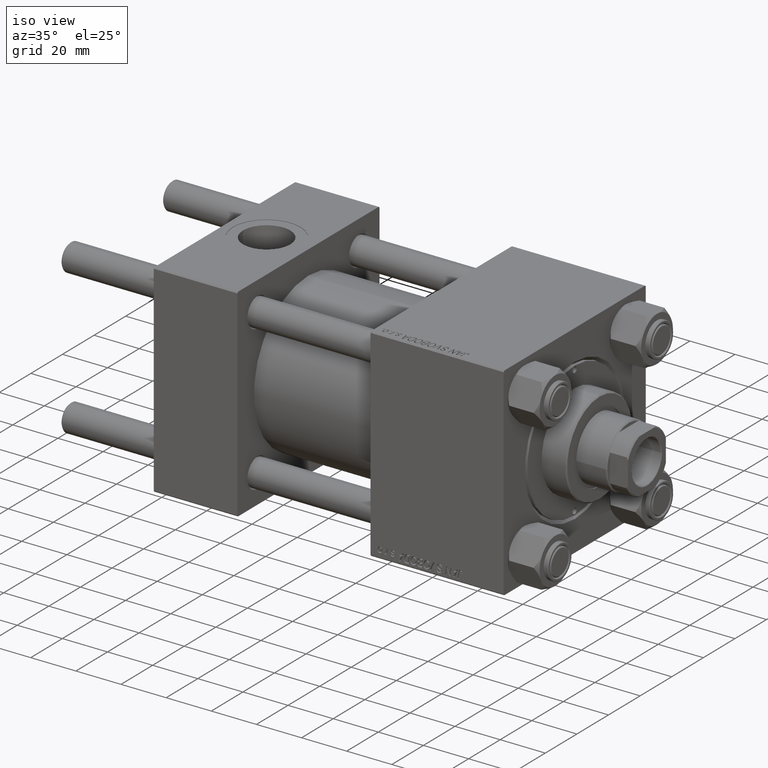
[diagram: clean part render]
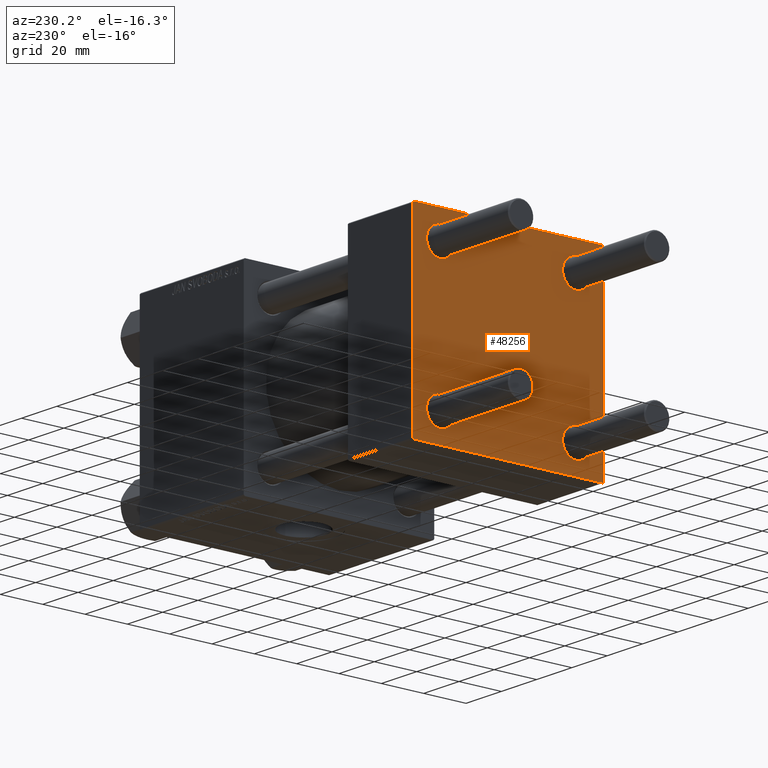
[diagram: tour spotlight — one face highlighted and labeled with its STEP entity id]
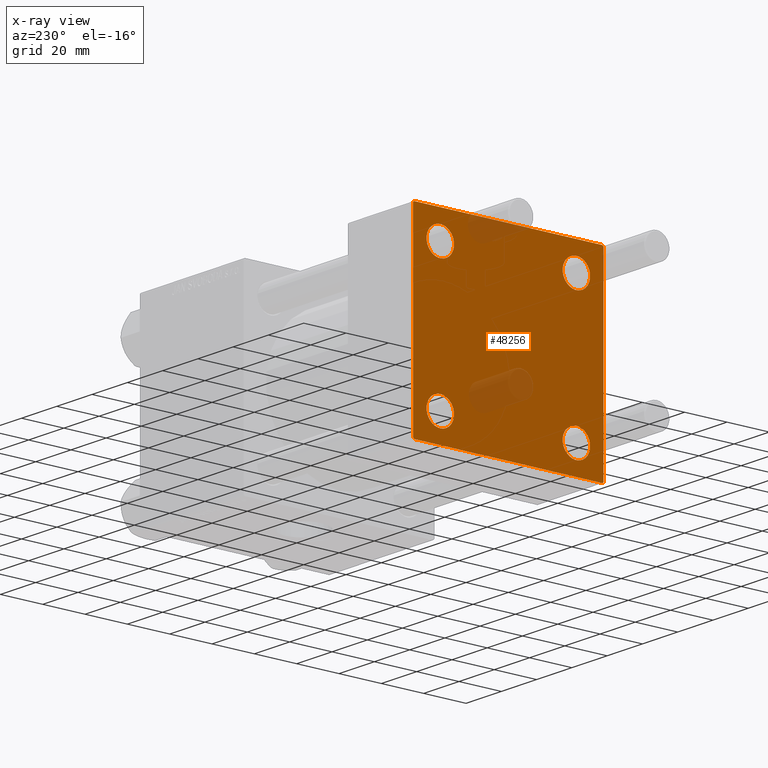
[diagram: x-ray of the same camera — body ghosted, this tour face saturated]
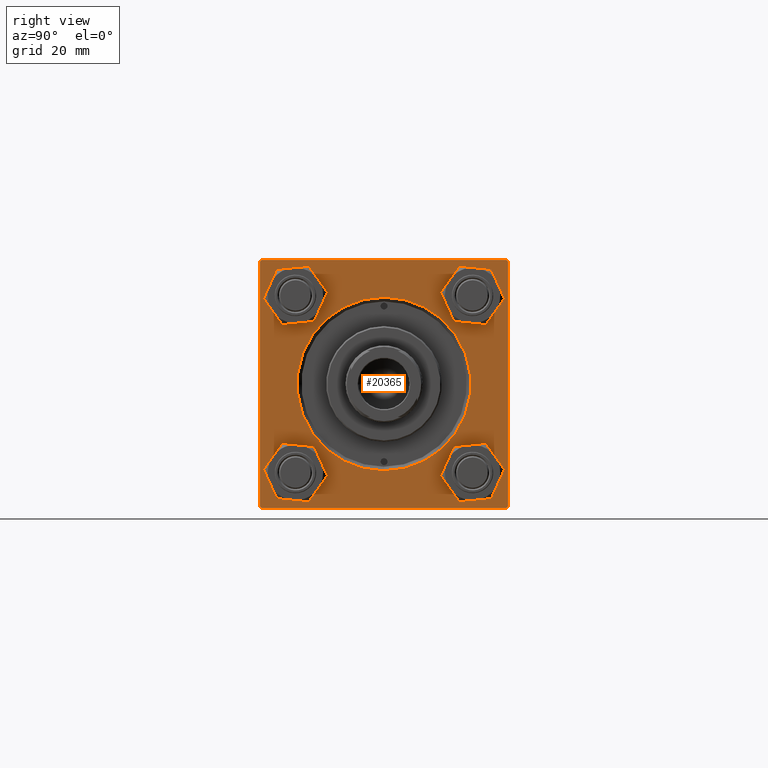
[diagram: tour spotlight — one face highlighted and labeled with its STEP entity id]
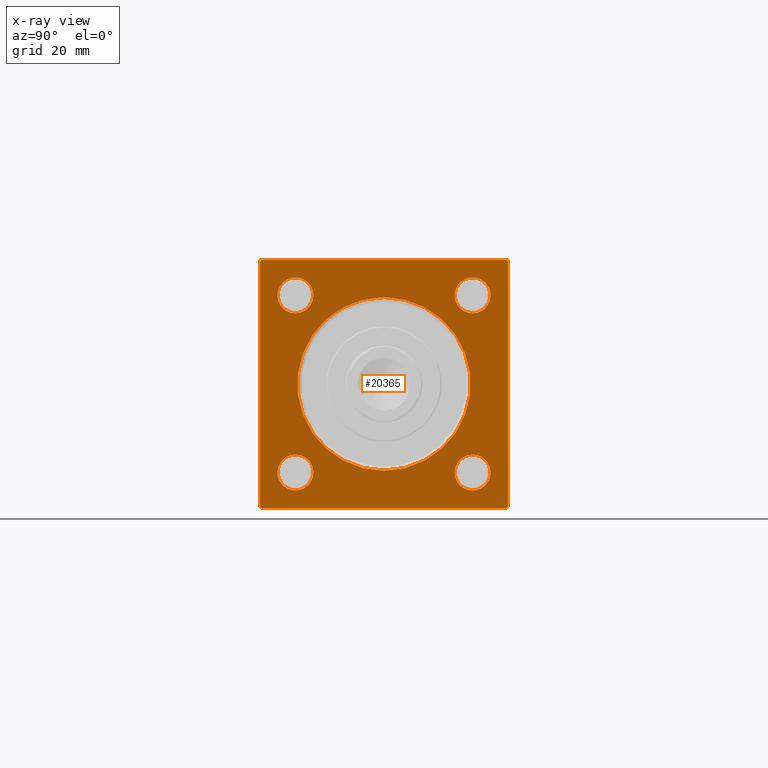
[diagram: x-ray of the same camera — body ghosted, this tour face saturated]
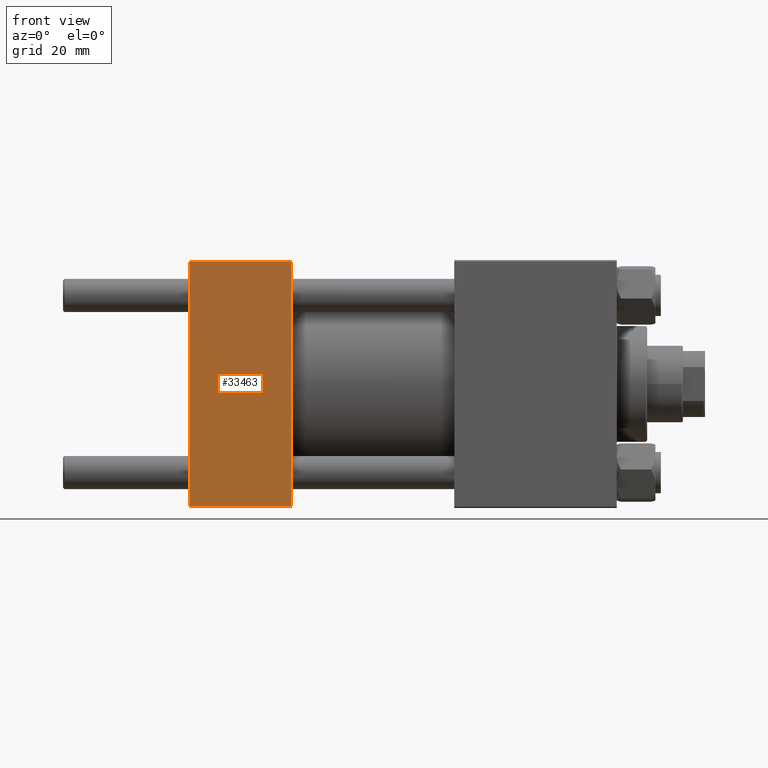
[diagram: tour spotlight — one face highlighted and labeled with its STEP entity id]
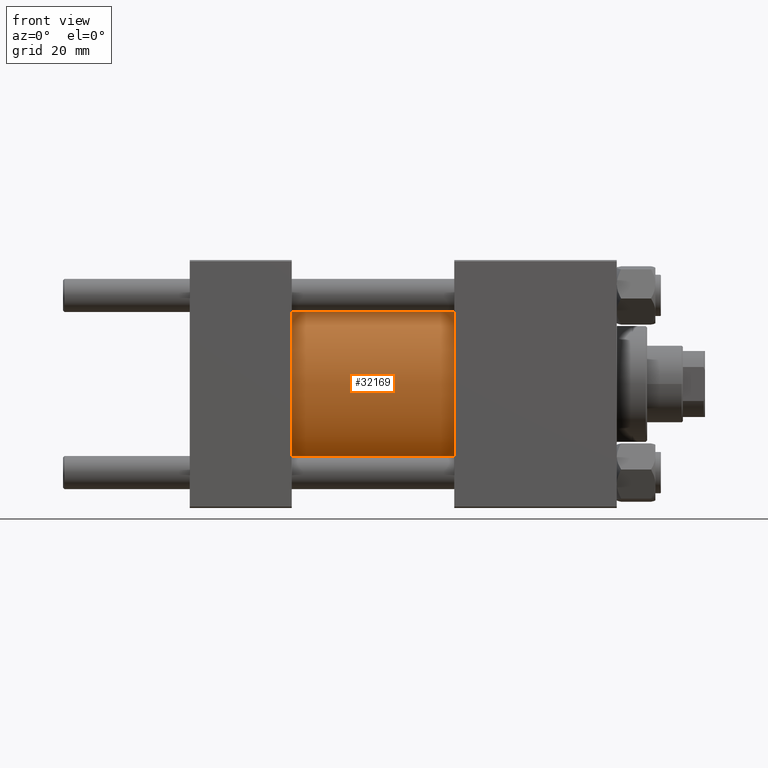
[diagram: tour spotlight — one face highlighted and labeled with its STEP entity id]
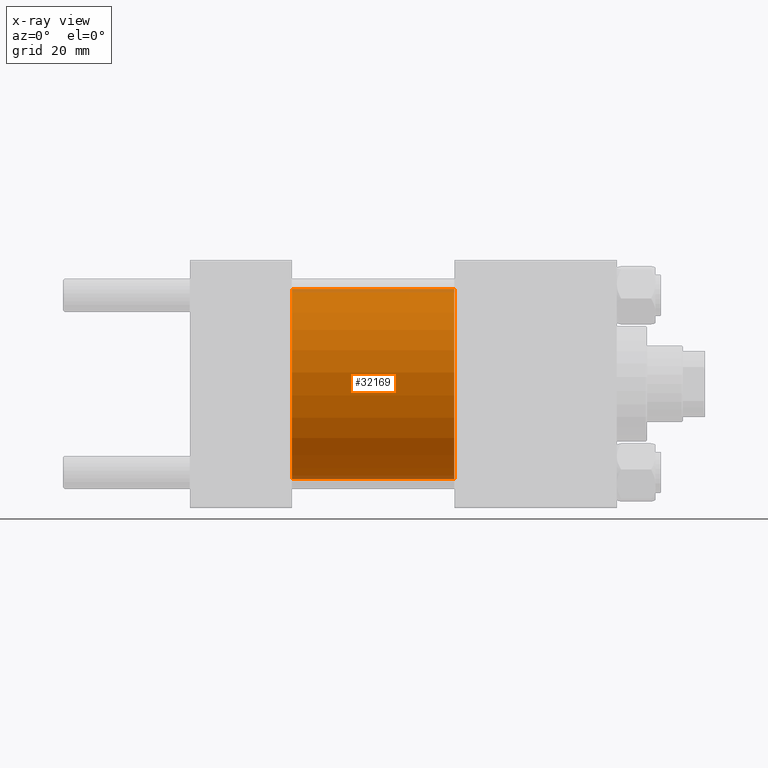
[diagram: x-ray of the same camera — body ghosted, this tour face saturated]
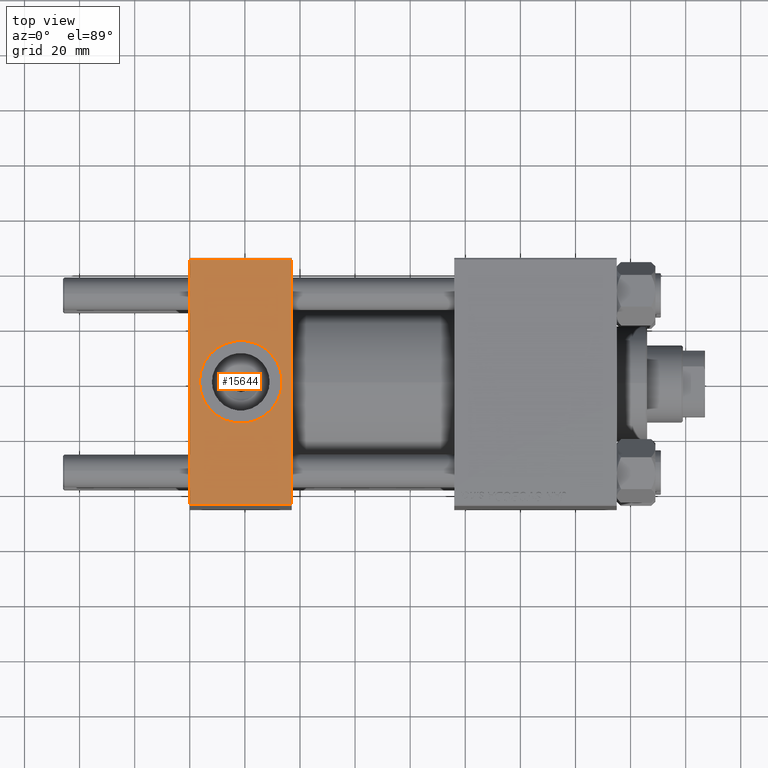
[diagram: tour spotlight — one face highlighted and labeled with its STEP entity id]
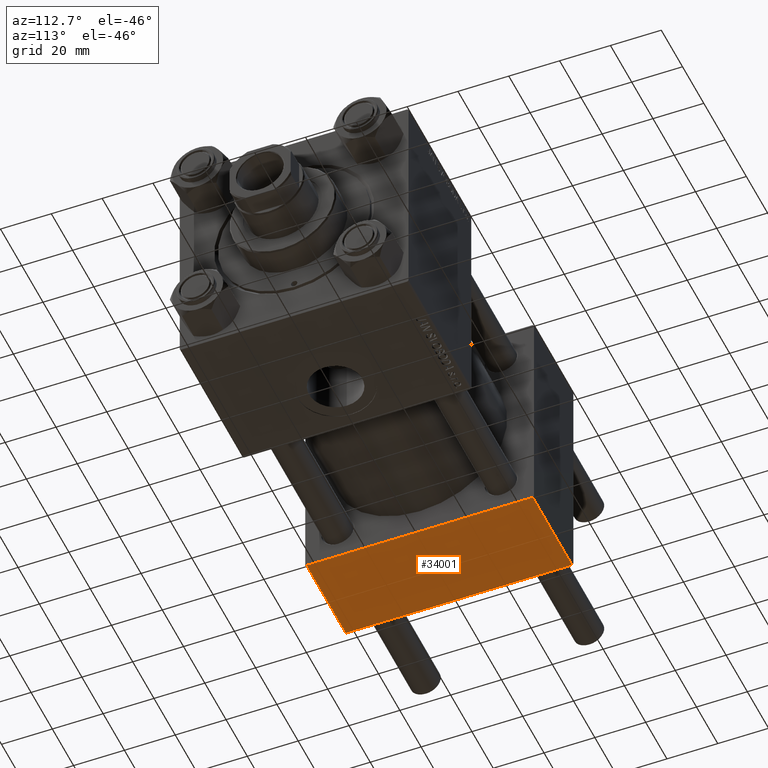
[diagram: tour spotlight — one face highlighted and labeled with its STEP entity id]
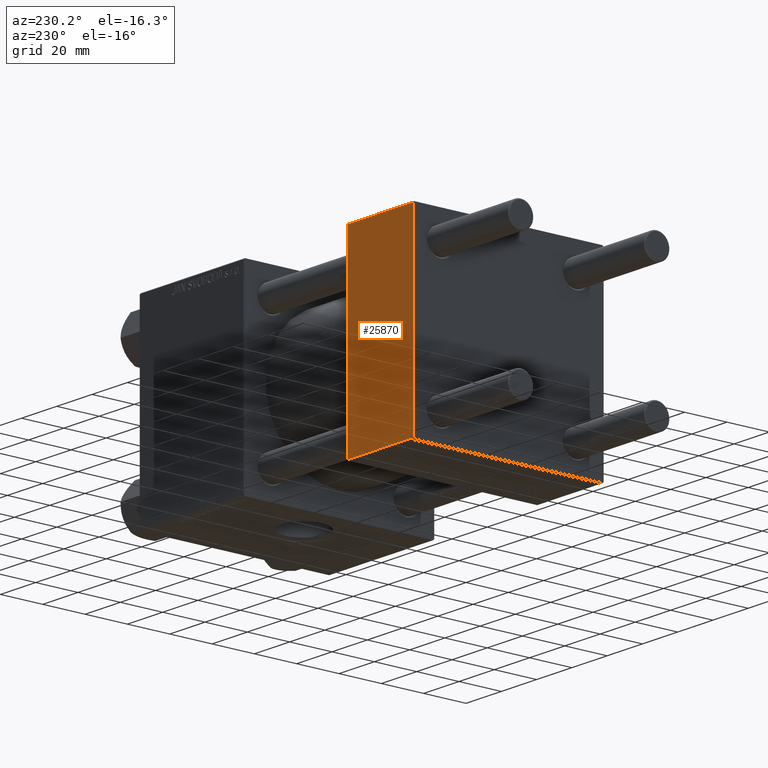
[diagram: tour spotlight — one face highlighted and labeled with its STEP entity id]
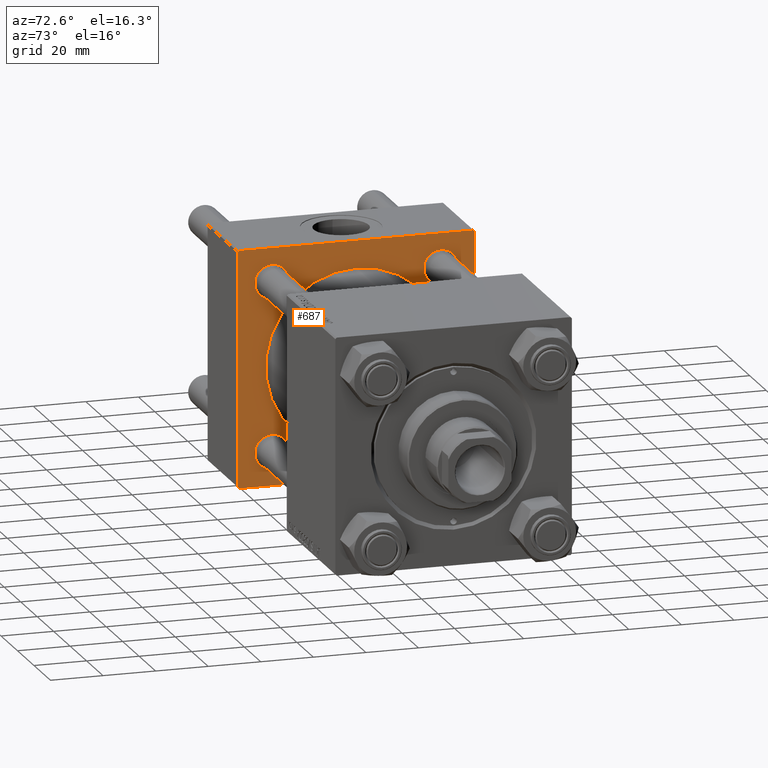
[diagram: tour spotlight — one face highlighted and labeled with its STEP entity id]
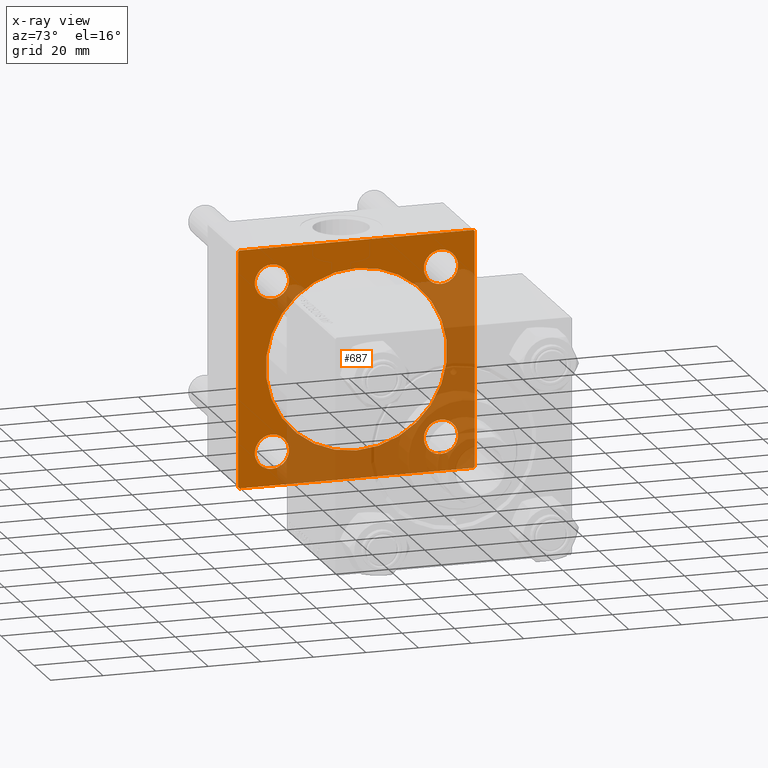
[diagram: x-ray of the same camera — body ghosted, this tour face saturated]
A machine part: a face-by-face anatomy tour. The part has 1139 B-rep faces; the first image is the clean iso view, then the 8 largest visible faces are spotlighted one at a time (largest first), each with its STEP entity span.

Face 1 — auxiliary view, entity #48256. An x-ray twin of the same camera follows (body ghosted, this face saturated) — the face is partly hidden behind the body. In plain terms, the highlighted planar face has unit normal (-1, 0, 0).
Definition (entity closure, byte-faithful):
#8 = LINE ( 'NONE', #46284, #48713 ) ;
#466 = ORIENTED_EDGE ( 'NONE', *, *, #40008, .T. ) ;
#475 = FACE_BOUND ( 'NONE', #8225, .T. ) ;
#733 = FACE_OUTER_BOUND ( 'NONE', #45118, .T. ) ;
#803 = VERTEX_POINT ( 'NONE', #37242 ) ;
#1323 = CARTESIAN_POINT ( 'NONE',  ( 0.000000000000000000, -32.14999999999997726, 32.15000000000001279 ) ) ;
#1366 = VERTEX_POINT ( 'NONE', #43325 ) ;
#1613 = AXIS2_PLACEMENT_3D ( 'NONE', #40736, #35925, #44541 ) ;
#1987 = CARTESIAN_POINT ( 'NONE',  ( 0.000000000000000000, -44.49999999999995737, -45.00000000000000000 ) ) ;
#2230 = CARTESIAN_POINT ( 'NONE',  ( 0.000000000000000000, -45.00000000000000000, -44.49999999999995737 ) ) ;
#3775 = FACE_BOUND ( 'NONE', #40136, .T. ) ;
#3908 = AXIS2_PLACEMENT_3D ( 'NONE', #25978, #25491, #14103 ) ;
#4196 = DIRECTION ( 'NONE',  ( 1.000000000000000000, -0.000000000000000000, 0.000000000000000000 ) ) ;
#4723 = CARTESIAN_POINT ( 'NONE',  ( 0.000000000000000000, 44.74999999999999289, 44.74999999999999289 ) ) ;
#4951 = ORIENTED_EDGE ( 'NONE', *, *, #26424, .T. ) ;
#5052 = DIRECTION ( 'NONE',  ( 0.000000000000000000, 0.000000000000000000, 1.000000000000000000 ) ) ;
#5663 = VECTOR ( 'NONE', #11406, 1000.000000000000000 ) ;
#6071 = VERTEX_POINT ( 'NONE', #36070 ) ;
#6287 = VERTEX_POINT ( 'NONE', #41853 ) ;
#6544 = CARTESIAN_POINT ( 'NONE',  ( 0.000000000000000000, -44.74999999999998579, -44.74999999999998579 ) ) ;
#7823 = FACE_BOUND ( 'NONE', #34146, .T. ) ;
#7837 = CARTESIAN_POINT ( 'NONE',  ( 0.000000000000000000, 44.99999999999998579, 44.50000000000001421 ) ) ;
#7858 = CARTESIAN_POINT ( 'NONE',  ( 0.000000000000000000, -32.14999999999997726, -38.64999999999999147 ) ) ;
#8070 = ORIENTED_EDGE ( 'NONE', *, *, #25309, .T. ) ;
#8225 = EDGE_LOOP ( 'NONE', ( #40233, #46766 ) ) ;
#8851 = VECTOR ( 'NONE', #20044, 1000.000000000000114 ) ;
#9671 = EDGE_CURVE ( 'NONE', #803, #23655, #48318, .T. ) ;
#10135 = EDGE_CURVE ( 'NONE', #23655, #803, #10383, .T. ) ;
#10383 = CIRCLE ( 'NONE', #23278, 6.499999999999977796 ) ;
#10417 = VECTOR ( 'NONE', #36133, 1000.000000000000000 ) ;
#10602 = AXIS2_PLACEMENT_3D ( 'NONE', #19703, #19956, #34861 ) ;
#11406 = DIRECTION ( 'NONE',  ( 0.000000000000000000, 7.709882115452476934E-17, -1.000000000000000000 ) ) ;
#11530 = CARTESIAN_POINT ( 'NONE',  ( 0.000000000000000000, -32.14999999999997726, 38.65000000000003411 ) ) ;
#11994 = VERTEX_POINT ( 'NONE', #16180 ) ;
#12057 = CARTESIAN_POINT ( 'NONE',  ( 0.000000000000000000, 32.14999999999999147, -32.15000000000000568 ) ) ;
#12392 = CARTESIAN_POINT ( 'NONE',  ( 0.000000000000000000, -32.14999999999997726, 32.15000000000001279 ) ) ;
#13252 = VERTEX_POINT ( 'NONE', #1987 ) ;
#14103 = DIRECTION ( 'NONE',  ( 0.000000000000000000, 0.000000000000000000, 1.000000000000000000 ) ) ;
#14657 = VECTOR ( 'NONE', #34303, 1000.000000000000114 ) ;
#14675 = VERTEX_POINT ( 'NONE', #40712 ) ;
#14735 = AXIS2_PLACEMENT_3D ( 'NONE', #36624, #47247, #32821 ) ;
#15724 = EDGE_CURVE ( 'NONE', #42624, #1366, #29798, .T. ) ;
#15741 = EDGE_CURVE ( 'NONE', #15951, #25167, #24015, .T. ) ;
#15951 = VERTEX_POINT ( 'NONE', #16623 ) ;
#16180 = CARTESIAN_POINT ( 'NONE',  ( 0.000000000000000000, -32.14999999999997726, -25.65000000000003411 ) ) ;
#16385 = AXIS2_PLACEMENT_3D ( 'NONE', #1323, #47094, #28636 ) ;
#16432 = EDGE_CURVE ( 'NONE', #6287, #25167, #23333, .T. ) ;
#16623 = CARTESIAN_POINT ( 'NONE',  ( 0.000000000000000000, 44.49999999999998579, 45.00000000000001421 ) ) ;
#17854 = VERTEX_POINT ( 'NONE', #7837 ) ;
#18137 = CARTESIAN_POINT ( 'NONE',  ( 0.000000000000000000, 44.99999999999998579, -44.49999999999995737 ) ) ;
#18770 = CIRCLE ( 'NONE', #14735, 6.499999999999977796 ) ;
#18950 = DIRECTION ( 'NONE',  ( 0.000000000000000000, 0.000000000000000000, 1.000000000000000000 ) ) ;
#19245 = CARTESIAN_POINT ( 'NONE',  ( 0.000000000000000000, -45.00000000000000711, 45.00000000000000000 ) ) ;
#19703 = CARTESIAN_POINT ( 'NONE',  ( 0.000000000000000000, 0.000000000000000000, 0.000000000000000000 ) ) ;
#19950 = CARTESIAN_POINT ( 'NONE',  ( 0.000000000000000000, -44.49999999999995737, 45.00000000000000000 ) ) ;
#19956 = DIRECTION ( 'NONE',  ( -1.000000000000000000, 0.000000000000000000, -0.000000000000000000 ) ) ;
#20044 = DIRECTION ( 'NONE',  ( -0.000000000000000000, 0.7071067811865425767, 0.7071067811865524577 ) ) ;
#20630 = DIRECTION ( 'NONE',  ( 0.000000000000000000, 0.000000000000000000, 1.000000000000000000 ) ) ;
#22529 = ORIENTED_EDGE ( 'NONE', *, *, #38128, .T. ) ;
#22552 = ORIENTED_EDGE ( 'NONE', *, *, #15741, .F. ) ;
#22838 = EDGE_CURVE ( 'NONE', #13252, #32063, #46198, .T. ) ;
#23278 = AXIS2_PLACEMENT_3D ( 'NONE', #12057, #42393, #31015 ) ;
#23333 = LINE ( 'NONE', #38743, #8851 ) ;
#23528 = CARTESIAN_POINT ( 'NONE',  ( 0.000000000000000000, 44.99999999999998579, -44.99999999999998579 ) ) ;
#23655 = VERTEX_POINT ( 'NONE', #36786 ) ;
#23751 = FACE_BOUND ( 'NONE', #45510, .T. ) ;
#24015 = LINE ( 'NONE', #32089, #10417 ) ;
#24071 = DIRECTION ( 'NONE',  ( -0.000000000000000000, -0.7071067811865474617, -0.7071067811865474617 ) ) ;
#25167 = VERTEX_POINT ( 'NONE', #19950 ) ;
#25309 = EDGE_CURVE ( 'NONE', #14675, #33193, #18770, .T. ) ;
#25491 = DIRECTION ( 'NONE',  ( 1.000000000000000000, -0.000000000000000000, 0.000000000000000000 ) ) ;
#25812 = VECTOR ( 'NONE', #24071, 1000.000000000000114 ) ;
#25978 = CARTESIAN_POINT ( 'NONE',  ( 0.000000000000000000, -32.14999999999997726, -32.15000000000001279 ) ) ;
#26203 = EDGE_CURVE ( 'NONE', #1366, #42624, #40611, .T. ) ;
#26424 = EDGE_CURVE ( 'NONE', #17854, #26920, #8, .T. ) ;
#26920 = VERTEX_POINT ( 'NONE', #18137 ) ;
#27022 = DIRECTION ( 'NONE',  ( 1.000000000000000000, -0.000000000000000000, 0.000000000000000000 ) ) ;
#27301 = CIRCLE ( 'NONE', #3908, 6.499999999999977796 ) ;
#27340 = ORIENTED_EDGE ( 'NONE', *, *, #48784, .T. ) ;
#28636 = DIRECTION ( 'NONE',  ( 0.000000000000000000, 0.000000000000000000, 1.000000000000000000 ) ) ;
#29205 = VECTOR ( 'NONE', #31352, 1000.000000000000000 ) ;
#29798 = CIRCLE ( 'NONE', #41896, 6.500000000000019540 ) ;
#29877 = ORIENTED_EDGE ( 'NONE', *, *, #46067, .F. ) ;
#31015 = DIRECTION ( 'NONE',  ( 0.000000000000000000, 0.000000000000000000, 1.000000000000000000 ) ) ;
#31352 = DIRECTION ( 'NONE',  ( 0.000000000000000000, -1.000000000000000000, -1.541976423090495633E-16 ) ) ;
#32063 = VERTEX_POINT ( 'NONE', #2230 ) ;
#32089 = CARTESIAN_POINT ( 'NONE',  ( 0.000000000000000000, 44.99999999999998579, 45.00000000000001421 ) ) ;
#32145 = LINE ( 'NONE', #43278, #25812 ) ;
#32821 = DIRECTION ( 'NONE',  ( 0.000000000000000000, 0.000000000000000000, 1.000000000000000000 ) ) ;
#33120 = CIRCLE ( 'NONE', #1613, 6.499999999999977796 ) ;
#33193 = VERTEX_POINT ( 'NONE', #33525 ) ;
#33525 = CARTESIAN_POINT ( 'NONE',  ( 0.000000000000000000, 32.14999999999999147, 38.64999999999999147 ) ) ;
#33886 = ORIENTED_EDGE ( 'NONE', *, *, #45379, .T. ) ;
#34146 = EDGE_LOOP ( 'NONE', ( #33886, #8070 ) ) ;
#34303 = DIRECTION ( 'NONE',  ( 0.000000000000000000, -0.7071067811865474617, 0.7071067811865474617 ) ) ;
#34668 = EDGE_CURVE ( 'NONE', #15951, #17854, #46447, .T. ) ;
#34861 = DIRECTION ( 'NONE',  ( -0.000000000000000000, 0.000000000000000000, 1.000000000000000000 ) ) ;
#35564 = DIRECTION ( 'NONE',  ( 0.000000000000000000, 0.7071067811865474617, -0.7071067811865474617 ) ) ;
#35925 = DIRECTION ( 'NONE',  ( 1.000000000000000000, -0.000000000000000000, 0.000000000000000000 ) ) ;
#36070 = CARTESIAN_POINT ( 'NONE',  ( 0.000000000000000000, 44.49999999999998579, -44.99999999999998579 ) ) ;
#36133 = DIRECTION ( 'NONE',  ( 0.000000000000000000, -1.000000000000000000, -1.541976423090495387E-16 ) ) ;
#36157 = AXIS2_PLACEMENT_3D ( 'NONE', #45744, #27022, #18950 ) ;
#36360 = CIRCLE ( 'NONE', #45291, 6.499999999999977796 ) ;
#36624 = CARTESIAN_POINT ( 'NONE',  ( 0.000000000000000000, 32.14999999999999147, 32.15000000000000568 ) ) ;
#36786 = CARTESIAN_POINT ( 'NONE',  ( 0.000000000000000000, 32.14999999999999147, -25.65000000000002700 ) ) ;
#37242 = CARTESIAN_POINT ( 'NONE',  ( 0.000000000000000000, 32.14999999999999147, -38.64999999999998437 ) ) ;
#38128 = EDGE_CURVE ( 'NONE', #11994, #49673, #27301, .T. ) ;
#38743 = CARTESIAN_POINT ( 'NONE',  ( -0.000000000000000000, -44.75000000000029843, 44.74999999999967315 ) ) ;
#38827 = CARTESIAN_POINT ( 'NONE',  ( 0.000000000000000000, -32.14999999999997726, -32.15000000000001279 ) ) ;
#39184 = LINE ( 'NONE', #23528, #29205 ) ;
#39677 = DIRECTION ( 'NONE',  ( 1.000000000000000000, -0.000000000000000000, 0.000000000000000000 ) ) ;
#40008 = EDGE_CURVE ( 'NONE', #26920, #6071, #32145, .T. ) ;
#40136 = EDGE_LOOP ( 'NONE', ( #22529, #43242 ) ) ;
#40233 = ORIENTED_EDGE ( 'NONE', *, *, #15724, .T. ) ;
#40611 = CIRCLE ( 'NONE', #16385, 6.500000000000019540 ) ;
#40685 = ORIENTED_EDGE ( 'NONE', *, *, #9671, .T. ) ;
#40712 = CARTESIAN_POINT ( 'NONE',  ( 0.000000000000000000, 32.14999999999999147, 25.65000000000002700 ) ) ;
#40736 = CARTESIAN_POINT ( 'NONE',  ( 0.000000000000000000, 32.14999999999999147, 32.15000000000000568 ) ) ;
#41853 = CARTESIAN_POINT ( 'NONE',  ( 0.000000000000000000, -45.00000000000000711, 44.49999999999997158 ) ) ;
#41896 = AXIS2_PLACEMENT_3D ( 'NONE', #12392, #39677, #5052 ) ;
#42393 = DIRECTION ( 'NONE',  ( 1.000000000000000000, -0.000000000000000000, 0.000000000000000000 ) ) ;
#42479 = DIRECTION ( 'NONE',  ( 0.000000000000000000, 0.000000000000000000, -1.000000000000000000 ) ) ;
#42624 = VERTEX_POINT ( 'NONE', #11530 ) ;
#43242 = ORIENTED_EDGE ( 'NONE', *, *, #46405, .T. ) ;
#43278 = CARTESIAN_POINT ( 'NONE',  ( 0.000000000000000000, 44.74999999999998579, -44.74999999999998579 ) ) ;
#43325 = CARTESIAN_POINT ( 'NONE',  ( 0.000000000000000000, -32.14999999999997726, 25.64999999999999147 ) ) ;
#44170 = VECTOR ( 'NONE', #35564, 1000.000000000000114 ) ;
#44541 = DIRECTION ( 'NONE',  ( 0.000000000000000000, 0.000000000000000000, 1.000000000000000000 ) ) ;
#45118 = EDGE_LOOP ( 'NONE', ( #4951, #466, #27340, #48619, #29877, #49061, #22552, #49283 ) ) ;
#45126 = ORIENTED_EDGE ( 'NONE', *, *, #10135, .T. ) ;
#45291 = AXIS2_PLACEMENT_3D ( 'NONE', #38827, #4196, #20630 ) ;
#45379 = EDGE_CURVE ( 'NONE', #33193, #14675, #33120, .T. ) ;
#45510 = EDGE_LOOP ( 'NONE', ( #45126, #40685 ) ) ;
#45744 = CARTESIAN_POINT ( 'NONE',  ( 0.000000000000000000, 32.14999999999999147, -32.15000000000000568 ) ) ;
#46048 = LINE ( 'NONE', #19245, #5663 ) ;
#46067 = EDGE_CURVE ( 'NONE', #6287, #32063, #46048, .T. ) ;
#46198 = LINE ( 'NONE', #6544, #14657 ) ;
#46284 = CARTESIAN_POINT ( 'NONE',  ( 0.000000000000000000, 44.99999999999998579, 45.00000000000001421 ) ) ;
#46405 = EDGE_CURVE ( 'NONE', #49673, #11994, #36360, .T. ) ;
#46447 = LINE ( 'NONE', #4723, #44170 ) ;
#46766 = ORIENTED_EDGE ( 'NONE', *, *, #26203, .T. ) ;
#47094 = DIRECTION ( 'NONE',  ( 1.000000000000000000, -0.000000000000000000, 0.000000000000000000 ) ) ;
#47247 = DIRECTION ( 'NONE',  ( 1.000000000000000000, -0.000000000000000000, 0.000000000000000000 ) ) ;
#48256 = ADVANCED_FACE ( 'NONE', ( #475, #3775, #23751, #7823, #733 ), #50050, .T. ) ;
#48318 = CIRCLE ( 'NONE', #36157, 6.499999999999977796 ) ;
#48619 = ORIENTED_EDGE ( 'NONE', *, *, #22838, .T. ) ;
#48713 = VECTOR ( 'NONE', #42479, 1000.000000000000000 ) ;
#48784 = EDGE_CURVE ( 'NONE', #6071, #13252, #39184, .T. ) ;
#49061 = ORIENTED_EDGE ( 'NONE', *, *, #16432, .T. ) ;
#49283 = ORIENTED_EDGE ( 'NONE', *, *, #34668, .T. ) ;
#49673 = VERTEX_POINT ( 'NONE', #7858 ) ;
#50050 = PLANE ( 'NONE',  #10602 ) ;

Face 2 — right view, entity #20365. An x-ray twin of the same camera follows (body ghosted, this face saturated) — the face is partly hidden behind the body. In plain terms, the highlighted planar face has unit normal (-1, 0, 0).
Definition (entity closure, byte-faithful):
#250 = LINE ( 'NONE', #33904, #15204 ) ;
#365 = DIRECTION ( 'NONE',  ( 0.000000000000000000, 0.000000000000000000, 1.000000000000000000 ) ) ;
#386 = ORIENTED_EDGE ( 'NONE', *, *, #12098, .T. ) ;
#561 = CARTESIAN_POINT ( 'NONE',  ( 155.0000000000000000, 45.00000000000001421, -45.00000000000000000 ) ) ;
#761 = LINE ( 'NONE', #1517, #22074 ) ;
#1457 = ORIENTED_EDGE ( 'NONE', *, *, #37826, .T. ) ;
#1517 = CARTESIAN_POINT ( 'NONE',  ( 155.0000000000000000, 45.00000000000001421, 45.00000000000000000 ) ) ;
#1522 = DIRECTION ( 'NONE',  ( -0.000000000000000000, -0.7071067811865474617, -0.7071067811865474617 ) ) ;
#1624 = DIRECTION ( 'NONE',  ( 0.000000000000000000, 0.000000000000000000, 1.000000000000000000 ) ) ;
#2145 = FACE_BOUND ( 'NONE', #26710, .T. ) ;
#2435 = CARTESIAN_POINT ( 'NONE',  ( 155.0000000000000000, 32.14999999999999147, 25.64999999999994529 ) ) ;
#2620 = ORIENTED_EDGE ( 'NONE', *, *, #19927, .T. ) ;
#2955 = ORIENTED_EDGE ( 'NONE', *, *, #18441, .T. ) ;
#3495 = DIRECTION ( 'NONE',  ( -1.000000000000000000, -0.000000000000000000, -0.000000000000000000 ) ) ;
#3962 = VERTEX_POINT ( 'NONE', #43156 ) ;
#4649 = AXIS2_PLACEMENT_3D ( 'NONE', #7781, #3495, #8536 ) ;
#4674 = CARTESIAN_POINT ( 'NONE',  ( 155.0000000000000000, -32.14999999999997726, -25.64999999999994884 ) ) ;
#4708 = CIRCLE ( 'NONE', #18438, 6.500000000000061284 ) ;
#4802 = ORIENTED_EDGE ( 'NONE', *, *, #19723, .T. ) ;
#4978 = VECTOR ( 'NONE', #7303, 1000.000000000000000 ) ;
#5831 = DIRECTION ( 'NONE',  ( 0.000000000000000000, 0.000000000000000000, 1.000000000000000000 ) ) ;
#5833 = EDGE_CURVE ( 'NONE', #36631, #23235, #18286, .T. ) ;
#6333 = CIRCLE ( 'NONE', #10376, 6.500000000000061284 ) ;
#6921 = CARTESIAN_POINT ( 'NONE',  ( 155.0000000000000000, 44.50000000000001421, -45.00000000000000000 ) ) ;
#7303 = DIRECTION ( 'NONE',  ( 0.000000000000000000, 7.709882115452478166E-17, -1.000000000000000000 ) ) ;
#7447 = EDGE_LOOP ( 'NONE', ( #2955, #31123 ) ) ;
#7781 = CARTESIAN_POINT ( 'NONE',  ( 155.0000000000000000, -32.14999999999997726, 32.15000000000001279 ) ) ;
#7859 = EDGE_CURVE ( 'NONE', #44216, #3962, #32362, .T. ) ;
#8536 = DIRECTION ( 'NONE',  ( 0.000000000000000000, 0.000000000000000000, 1.000000000000000000 ) ) ;
#8545 = FACE_BOUND ( 'NONE', #28843, .T. ) ;
#10106 = DIRECTION ( 'NONE',  ( -1.000000000000000000, -0.000000000000000000, -0.000000000000000000 ) ) ;
#10321 = VERTEX_POINT ( 'NONE', #2435 ) ;
#10376 = AXIS2_PLACEMENT_3D ( 'NONE', #35994, #36253, #1624 ) ;
#10574 = VERTEX_POINT ( 'NONE', #34191 ) ;
#10642 = VERTEX_POINT ( 'NONE', #42771 ) ;
#10925 = CARTESIAN_POINT ( 'NONE',  ( 155.0000000000000000, -44.49999999999994316, 44.99999999999998579 ) ) ;
#11359 = VERTEX_POINT ( 'NONE', #43337 ) ;
#11365 = AXIS2_PLACEMENT_3D ( 'NONE', #27507, #47221, #32985 ) ;
#11395 = AXIS2_PLACEMENT_3D ( 'NONE', #20819, #43059, #12224 ) ;
#11513 = DIRECTION ( 'NONE',  ( -1.000000000000000000, -0.000000000000000000, -0.000000000000000000 ) ) ;
#11640 = CARTESIAN_POINT ( 'NONE',  ( 155.0000000000000000, 0.000000000000000000, 0.000000000000000000 ) ) ;
#12084 = FACE_OUTER_BOUND ( 'NONE', #41959, .T. ) ;
#12098 = EDGE_CURVE ( 'NONE', #13039, #34953, #44223, .T. ) ;
#12140 = VERTEX_POINT ( 'NONE', #43163 ) ;
#12221 = EDGE_CURVE ( 'NONE', #15171, #44090, #30915, .T. ) ;
#12224 = DIRECTION ( 'NONE',  ( 0.000000000000000000, 0.000000000000000000, 1.000000000000000000 ) ) ;
#12346 = VECTOR ( 'NONE', #43769, 1000.000000000000000 ) ;
#12936 = ORIENTED_EDGE ( 'NONE', *, *, #7859, .T. ) ;
#13039 = VERTEX_POINT ( 'NONE', #14911 ) ;
#13440 = LINE ( 'NONE', #36935, #12346 ) ;
#13947 = CARTESIAN_POINT ( 'NONE',  ( 155.0000000000000000, 3.857637417314162689E-15, 31.50000000000000000 ) ) ;
#14237 = CARTESIAN_POINT ( 'NONE',  ( 155.0000000000000000, 0.000000000000000000, 0.000000000000000000 ) ) ;
#14312 = ORIENTED_EDGE ( 'NONE', *, *, #44357, .T. ) ;
#14453 = EDGE_CURVE ( 'NONE', #23235, #36631, #6333, .T. ) ;
#14591 = VECTOR ( 'NONE', #43798, 1000.000000000000114 ) ;
#14750 = ORIENTED_EDGE ( 'NONE', *, *, #21190, .T. ) ;
#14911 = CARTESIAN_POINT ( 'NONE',  ( 155.0000000000000000, -32.14999999999997726, 38.65000000000007674 ) ) ;
#15171 = VERTEX_POINT ( 'NONE', #6921 ) ;
#15204 = VECTOR ( 'NONE', #23521, 1000.000000000000000 ) ;
#15223 = VERTEX_POINT ( 'NONE', #30415 ) ;
#15528 = CARTESIAN_POINT ( 'NONE',  ( 155.0000000000000000, -44.49999999999990052, -45.00000000000000000 ) ) ;
#15843 = AXIS2_PLACEMENT_3D ( 'NONE', #41426, #10106, #38121 ) ;
#17353 = DIRECTION ( 'NONE',  ( -1.000000000000000000, -0.000000000000000000, -0.000000000000000000 ) ) ;
#17475 = LINE ( 'NONE', #35915, #33085 ) ;
#18286 = CIRCLE ( 'NONE', #15843, 6.500000000000061284 ) ;
#18438 = AXIS2_PLACEMENT_3D ( 'NONE', #44250, #24032, #5831 ) ;
#18441 = EDGE_CURVE ( 'NONE', #10321, #11359, #38188, .T. ) ;
#19075 = ORIENTED_EDGE ( 'NONE', *, *, #28314, .T. ) ;
#19723 = EDGE_CURVE ( 'NONE', #15171, #20105, #20803, .T. ) ;
#19924 = FACE_BOUND ( 'NONE', #7447, .T. ) ;
#19927 = EDGE_CURVE ( 'NONE', #12140, #23258, #41253, .T. ) ;
#20105 = VERTEX_POINT ( 'NONE', #49288 ) ;
#20181 = FACE_BOUND ( 'NONE', #41705, .T. ) ;
#20365 = ADVANCED_FACE ( 'NONE', ( #8545, #2145, #19924, #32729, #20181, #12084 ), #23964, .F. ) ;
#20470 = EDGE_LOOP ( 'NONE', ( #14750, #386 ) ) ;
#20803 = LINE ( 'NONE', #28383, #14591 ) ;
#20819 = CARTESIAN_POINT ( 'NONE',  ( 155.0000000000000000, -32.14999999999997726, 32.15000000000001279 ) ) ;
#21018 = VERTEX_POINT ( 'NONE', #44882 ) ;
#21190 = EDGE_CURVE ( 'NONE', #34953, #13039, #37257, .T. ) ;
#21207 = ORIENTED_EDGE ( 'NONE', *, *, #44601, .T. ) ;
#21410 = DIRECTION ( 'NONE',  ( 0.000000000000000000, 0.000000000000000000, 1.000000000000000000 ) ) ;
#21896 = AXIS2_PLACEMENT_3D ( 'NONE', #11640, #27061, #42478 ) ;
#21904 = CARTESIAN_POINT ( 'NONE',  ( 155.0000000000000000, 32.14999999999999147, -32.15000000000000568 ) ) ;
#22035 = CARTESIAN_POINT ( 'NONE',  ( 155.0000000000000000, -32.14999999999997726, -38.65000000000007674 ) ) ;
#22039 = AXIS2_PLACEMENT_3D ( 'NONE', #14237, #33684, #49119 ) ;
#22074 = VECTOR ( 'NONE', #35387, 1000.000000000000000 ) ;
#22925 = ORIENTED_EDGE ( 'NONE', *, *, #41167, .T. ) ;
#23235 = VERTEX_POINT ( 'NONE', #22035 ) ;
#23258 = VERTEX_POINT ( 'NONE', #13947 ) ;
#23521 = DIRECTION ( 'NONE',  ( 0.000000000000000000, -1.000000000000000000, -1.541976423090495140E-16 ) ) ;
#23607 = ORIENTED_EDGE ( 'NONE', *, *, #12221, .F. ) ;
#23964 = PLANE ( 'NONE',  #11365 ) ;
#24032 = DIRECTION ( 'NONE',  ( -1.000000000000000000, -0.000000000000000000, -0.000000000000000000 ) ) ;
#24943 = ORIENTED_EDGE ( 'NONE', *, *, #26706, .T. ) ;
#25419 = ORIENTED_EDGE ( 'NONE', *, *, #14453, .T. ) ;
#25988 = EDGE_CURVE ( 'NONE', #21018, #44090, #13440, .T. ) ;
#26441 = EDGE_CURVE ( 'NONE', #10642, #20105, #761, .T. ) ;
#26706 = EDGE_CURVE ( 'NONE', #3962, #21018, #50019, .T. ) ;
#26710 = EDGE_LOOP ( 'NONE', ( #1457, #21207 ) ) ;
#27004 = CARTESIAN_POINT ( 'NONE',  ( 155.0000000000000000, -45.00000000000000000, 44.99999999999998579 ) ) ;
#27061 = DIRECTION ( 'NONE',  ( -1.000000000000000000, -0.000000000000000000, -0.000000000000000000 ) ) ;
#27507 = CARTESIAN_POINT ( 'NONE',  ( 155.0000000000000000, 0.000000000000000000, 0.000000000000000000 ) ) ;
#27780 = VERTEX_POINT ( 'NONE', #45680 ) ;
#28314 = EDGE_CURVE ( 'NONE', #23258, #12140, #42971, .T. ) ;
#28383 = CARTESIAN_POINT ( 'NONE',  ( 155.0000000000000000, 45.00000000000001421, -44.50000000000000000 ) ) ;
#28843 = EDGE_LOOP ( 'NONE', ( #25419, #42453 ) ) ;
#29079 = AXIS2_PLACEMENT_3D ( 'NONE', #34757, #11513, #365 ) ;
#30415 = CARTESIAN_POINT ( 'NONE',  ( 155.0000000000000000, 32.14999999999999147, -25.64999999999994529 ) ) ;
#30915 = LINE ( 'NONE', #561, #42579 ) ;
#31123 = ORIENTED_EDGE ( 'NONE', *, *, #40290, .T. ) ;
#31445 = CIRCLE ( 'NONE', #46784, 6.500000000000061284 ) ;
#32362 = LINE ( 'NONE', #43491, #49035 ) ;
#32729 = FACE_BOUND ( 'NONE', #20470, .T. ) ;
#32985 = DIRECTION ( 'NONE',  ( -0.000000000000000000, 0.000000000000000000, 1.000000000000000000 ) ) ;
#33085 = VECTOR ( 'NONE', #48073, 1000.000000000000114 ) ;
#33684 = DIRECTION ( 'NONE',  ( -1.000000000000000000, -0.000000000000000000, -0.000000000000000000 ) ) ;
#33873 = ORIENTED_EDGE ( 'NONE', *, *, #26441, .F. ) ;
#33904 = CARTESIAN_POINT ( 'NONE',  ( 155.0000000000000000, 45.00000000000001421, 45.00000000000000000 ) ) ;
#34125 = ORIENTED_EDGE ( 'NONE', *, *, #25988, .T. ) ;
#34191 = CARTESIAN_POINT ( 'NONE',  ( 155.0000000000000000, 44.49999999999998579, 45.00000000000000000 ) ) ;
#34757 = CARTESIAN_POINT ( 'NONE',  ( 155.0000000000000000, 32.14999999999999147, 32.15000000000000568 ) ) ;
#34953 = VERTEX_POINT ( 'NONE', #46886 ) ;
#35188 = DIRECTION ( 'NONE',  ( 0.000000000000000000, -1.000000000000000000, 0.000000000000000000 ) ) ;
#35387 = DIRECTION ( 'NONE',  ( 0.000000000000000000, 0.000000000000000000, -1.000000000000000000 ) ) ;
#35573 = DIRECTION ( 'NONE',  ( 0.000000000000000000, 0.000000000000000000, 1.000000000000000000 ) ) ;
#35915 = CARTESIAN_POINT ( 'NONE',  ( 155.0000000000000000, 44.49999999999998579, 45.00000000000000000 ) ) ;
#35994 = CARTESIAN_POINT ( 'NONE',  ( 155.0000000000000000, -32.14999999999997726, -32.15000000000001279 ) ) ;
#36253 = DIRECTION ( 'NONE',  ( -1.000000000000000000, -0.000000000000000000, -0.000000000000000000 ) ) ;
#36631 = VERTEX_POINT ( 'NONE', #4674 ) ;
#36935 = CARTESIAN_POINT ( 'NONE',  ( 155.0000000000000000, -44.49999999999992895, -45.00000000000000000 ) ) ;
#37257 = CIRCLE ( 'NONE', #11395, 6.500000000000061284 ) ;
#37689 = DIRECTION ( 'NONE',  ( -1.000000000000000000, -0.000000000000000000, -0.000000000000000000 ) ) ;
#37826 = EDGE_CURVE ( 'NONE', #27780, #15223, #4708, .T. ) ;
#38121 = DIRECTION ( 'NONE',  ( 0.000000000000000000, 0.000000000000000000, 1.000000000000000000 ) ) ;
#38188 = CIRCLE ( 'NONE', #29079, 6.500000000000061284 ) ;
#40290 = EDGE_CURVE ( 'NONE', #11359, #10321, #44360, .T. ) ;
#41167 = EDGE_CURVE ( 'NONE', #10574, #44216, #250, .T. ) ;
#41253 = CIRCLE ( 'NONE', #21896, 31.50000000000000000 ) ;
#41426 = CARTESIAN_POINT ( 'NONE',  ( 155.0000000000000000, -32.14999999999997726, -32.15000000000001279 ) ) ;
#41705 = EDGE_LOOP ( 'NONE', ( #2620, #19075 ) ) ;
#41959 = EDGE_LOOP ( 'NONE', ( #24943, #34125, #23607, #4802, #33873, #14312, #22925, #12936 ) ) ;
#42453 = ORIENTED_EDGE ( 'NONE', *, *, #5833, .T. ) ;
#42478 = DIRECTION ( 'NONE',  ( 0.000000000000000000, 0.000000000000000000, 1.000000000000000000 ) ) ;
#42579 = VECTOR ( 'NONE', #35188, 1000.000000000000000 ) ;
#42771 = CARTESIAN_POINT ( 'NONE',  ( 155.0000000000000000, 45.00000000000001421, 44.49999999999997158 ) ) ;
#42971 = CIRCLE ( 'NONE', #22039, 31.50000000000000000 ) ;
#43059 = DIRECTION ( 'NONE',  ( -1.000000000000000000, -0.000000000000000000, -0.000000000000000000 ) ) ;
#43156 = CARTESIAN_POINT ( 'NONE',  ( 155.0000000000000000, -45.00000000000000000, 44.49999999999995737 ) ) ;
#43163 = CARTESIAN_POINT ( 'NONE',  ( 155.0000000000000000, 0.000000000000000000, -31.50000000000000000 ) ) ;
#43337 = CARTESIAN_POINT ( 'NONE',  ( 155.0000000000000000, 32.14999999999999147, 38.65000000000007674 ) ) ;
#43491 = CARTESIAN_POINT ( 'NONE',  ( 155.0000000000000000, -45.00000000000000000, 44.49999999999995737 ) ) ;
#43769 = DIRECTION ( 'NONE',  ( 0.000000000000000000, 0.7071067811865524577, -0.7071067811865426878 ) ) ;
#43798 = DIRECTION ( 'NONE',  ( -0.000000000000000000, 0.7071067811865474617, 0.7071067811865474617 ) ) ;
#44090 = VERTEX_POINT ( 'NONE', #15528 ) ;
#44216 = VERTEX_POINT ( 'NONE', #10925 ) ;
#44223 = CIRCLE ( 'NONE', #4649, 6.500000000000061284 ) ;
#44250 = CARTESIAN_POINT ( 'NONE',  ( 155.0000000000000000, 32.14999999999999147, -32.15000000000000568 ) ) ;
#44357 = EDGE_CURVE ( 'NONE', #10642, #10574, #17475, .T. ) ;
#44360 = CIRCLE ( 'NONE', #45969, 6.500000000000061284 ) ;
#44601 = EDGE_CURVE ( 'NONE', #15223, #27780, #31445, .T. ) ;
#44882 = CARTESIAN_POINT ( 'NONE',  ( 155.0000000000000000, -44.99999999999999289, -44.49999999999991473 ) ) ;
#45680 = CARTESIAN_POINT ( 'NONE',  ( 155.0000000000000000, 32.14999999999999147, -38.65000000000006963 ) ) ;
#45969 = AXIS2_PLACEMENT_3D ( 'NONE', #46959, #37689, #35573 ) ;
#46784 = AXIS2_PLACEMENT_3D ( 'NONE', #21904, #17353, #21410 ) ;
#46886 = CARTESIAN_POINT ( 'NONE',  ( 155.0000000000000000, -32.14999999999997726, 25.64999999999994884 ) ) ;
#46959 = CARTESIAN_POINT ( 'NONE',  ( 155.0000000000000000, 32.14999999999999147, 32.15000000000000568 ) ) ;
#47221 = DIRECTION ( 'NONE',  ( -1.000000000000000000, 0.000000000000000000, -0.000000000000000000 ) ) ;
#48073 = DIRECTION ( 'NONE',  ( 0.000000000000000000, -0.7071067811865474617, 0.7071067811865474617 ) ) ;
#49035 = VECTOR ( 'NONE', #1522, 1000.000000000000114 ) ;
#49119 = DIRECTION ( 'NONE',  ( 0.000000000000000000, 0.000000000000000000, 1.000000000000000000 ) ) ;
#49288 = CARTESIAN_POINT ( 'NONE',  ( 155.0000000000000000, 45.00000000000001421, -44.49999999999997158 ) ) ;
#50019 = LINE ( 'NONE', #27004, #4978 ) ;

Face 3 — front view, entity #33463. In plain terms, the highlighted planar face has unit normal (0, 1, 0).
Definition (entity closure, byte-faithful):
#1053 = CARTESIAN_POINT ( 'NONE',  ( 37.00000000000000000, -45.00000000000000711, 45.00000000000000000 ) ) ;
#1402 = CARTESIAN_POINT ( 'NONE',  ( 37.00000000000000000, -45.00000000000000711, 44.49999999999997158 ) ) ;
#2230 = CARTESIAN_POINT ( 'NONE',  ( 0.000000000000000000, -45.00000000000000000, -44.49999999999995737 ) ) ;
#2809 = EDGE_CURVE ( 'NONE', #32063, #36222, #7030, .T. ) ;
#2902 = ORIENTED_EDGE ( 'NONE', *, *, #43083, .T. ) ;
#3042 = ORIENTED_EDGE ( 'NONE', *, *, #46067, .T. ) ;
#3825 = CARTESIAN_POINT ( 'NONE',  ( 37.00000000000000000, -45.00000000000000711, 44.49999999999997158 ) ) ;
#5196 = LINE ( 'NONE', #1402, #8832 ) ;
#5663 = VECTOR ( 'NONE', #11406, 1000.000000000000000 ) ;
#5930 = DIRECTION ( 'NONE',  ( 0.000000000000000000, -7.709882115452478166E-17, 1.000000000000000000 ) ) ;
#6287 = VERTEX_POINT ( 'NONE', #41853 ) ;
#7030 = LINE ( 'NONE', #45464, #40798 ) ;
#8832 = VECTOR ( 'NONE', #20628, 1000.000000000000000 ) ;
#9401 = DIRECTION ( 'NONE',  ( 0.000000000000000000, 7.709882115452476934E-17, -1.000000000000000000 ) ) ;
#9674 = CARTESIAN_POINT ( 'NONE',  ( 37.00000000000000000, -45.00000000000000000, -44.49999999999995737 ) ) ;
#10732 = EDGE_CURVE ( 'NONE', #24948, #36222, #31642, .T. ) ;
#11406 = DIRECTION ( 'NONE',  ( 0.000000000000000000, 7.709882115452476934E-17, -1.000000000000000000 ) ) ;
#11708 = ORIENTED_EDGE ( 'NONE', *, *, #2809, .T. ) ;
#19245 = CARTESIAN_POINT ( 'NONE',  ( 0.000000000000000000, -45.00000000000000711, 45.00000000000000000 ) ) ;
#20628 = DIRECTION ( 'NONE',  ( -1.000000000000000000, 0.000000000000000000, 0.000000000000000000 ) ) ;
#21533 = EDGE_LOOP ( 'NONE', ( #3042, #11708, #29451, #2902 ) ) ;
#24948 = VERTEX_POINT ( 'NONE', #3825 ) ;
#28927 = PLANE ( 'NONE',  #34441 ) ;
#29451 = ORIENTED_EDGE ( 'NONE', *, *, #10732, .F. ) ;
#31019 = DIRECTION ( 'NONE',  ( 1.000000000000000000, 0.000000000000000000, 0.000000000000000000 ) ) ;
#31642 = LINE ( 'NONE', #1053, #41075 ) ;
#32063 = VERTEX_POINT ( 'NONE', #2230 ) ;
#33463 = ADVANCED_FACE ( 'NONE', ( #44849 ), #28927, .F. ) ;
#34441 = AXIS2_PLACEMENT_3D ( 'NONE', #43840, #44350, #5930 ) ;
#36222 = VERTEX_POINT ( 'NONE', #9674 ) ;
#40798 = VECTOR ( 'NONE', #31019, 1000.000000000000000 ) ;
#41075 = VECTOR ( 'NONE', #9401, 1000.000000000000000 ) ;
#41853 = CARTESIAN_POINT ( 'NONE',  ( 0.000000000000000000, -45.00000000000000711, 44.49999999999997158 ) ) ;
#43083 = EDGE_CURVE ( 'NONE', #24948, #6287, #5196, .T. ) ;
#43840 = CARTESIAN_POINT ( 'NONE',  ( 37.00000000000000000, -45.00000000000000711, 45.00000000000000000 ) ) ;
#44350 = DIRECTION ( 'NONE',  ( -0.000000000000000000, 1.000000000000000000, 7.709882115452478166E-17 ) ) ;
#44849 = FACE_OUTER_BOUND ( 'NONE', #21533, .T. ) ;
#45464 = CARTESIAN_POINT ( 'NONE',  ( 37.00000000000000000, -45.00000000000000000, -44.49999999999998579 ) ) ;
#46048 = LINE ( 'NONE', #19245, #5663 ) ;
#46067 = EDGE_CURVE ( 'NONE', #6287, #32063, #46048, .T. ) ;

Face 4 — front view, entity #32169. An x-ray twin of the same camera follows (body ghosted, this face saturated) — the face is partly hidden behind the body. In plain terms, the highlighted cylindrical surface (partial cylindrical patch) has radius 34.5 mm, axis along (-1, -0, -0).
Definition (entity closure, byte-faithful):
#1510 = VERTEX_POINT ( 'NONE', #40284 ) ;
#2904 = CARTESIAN_POINT ( 'NONE',  ( 37.00000000000000000, 0.000000000000000000, 34.49999999999999289 ) ) ;
#3305 = VECTOR ( 'NONE', #11983, 1000.000000000000000 ) ;
#3451 = DIRECTION ( 'NONE',  ( 0.000000000000000000, 0.000000000000000000, -1.000000000000000000 ) ) ;
#6388 = LINE ( 'NONE', #21816, #6467 ) ;
#6467 = VECTOR ( 'NONE', #14218, 1000.000000000000000 ) ;
#8217 = EDGE_CURVE ( 'NONE', #1510, #22867, #23176, .T. ) ;
#9108 = CIRCLE ( 'NONE', #9914, 34.49999999999999289 ) ;
#9914 = AXIS2_PLACEMENT_3D ( 'NONE', #11419, #49369, #46060 ) ;
#11419 = CARTESIAN_POINT ( 'NONE',  ( 37.00000000000000000, 0.000000000000000000, 0.000000000000000000 ) ) ;
#11983 = DIRECTION ( 'NONE',  ( -1.000000000000000000, -0.000000000000000000, -0.000000000000000000 ) ) ;
#12562 = EDGE_LOOP ( 'NONE', ( #43108, #20061, #15286, #46986 ) ) ;
#13427 = AXIS2_PLACEMENT_3D ( 'NONE', #23178, #15090, #34539 ) ;
#14218 = DIRECTION ( 'NONE',  ( -1.000000000000000000, -0.000000000000000000, -0.000000000000000000 ) ) ;
#15090 = DIRECTION ( 'NONE',  ( -1.000000000000000000, -0.000000000000000000, -0.000000000000000000 ) ) ;
#15286 = ORIENTED_EDGE ( 'NONE', *, *, #41773, .T. ) ;
#15996 = VERTEX_POINT ( 'NONE', #43165 ) ;
#16351 = CARTESIAN_POINT ( 'NONE',  ( 96.00000000000000000, 4.225031457058367344E-15, -34.49999999999999289 ) ) ;
#19328 = LINE ( 'NONE', #27659, #3305 ) ;
#20061 = ORIENTED_EDGE ( 'NONE', *, *, #8217, .F. ) ;
#21816 = CARTESIAN_POINT ( 'NONE',  ( 96.00000000000000000, 0.000000000000000000, 34.49999999999999289 ) ) ;
#22867 = VERTEX_POINT ( 'NONE', #16351 ) ;
#23176 = CIRCLE ( 'NONE', #45804, 34.49999999999999289 ) ;
#23178 = CARTESIAN_POINT ( 'NONE',  ( 96.00000000000000000, 0.000000000000000000, 0.000000000000000000 ) ) ;
#24785 = EDGE_CURVE ( 'NONE', #43167, #15996, #9108, .T. ) ;
#27659 = CARTESIAN_POINT ( 'NONE',  ( 96.00000000000000000, 4.225031457058367344E-15, -34.49999999999999289 ) ) ;
#32169 = ADVANCED_FACE ( 'NONE', ( #34299 ), #49734, .T. ) ;
#34299 = FACE_OUTER_BOUND ( 'NONE', #12562, .T. ) ;
#34539 = DIRECTION ( 'NONE',  ( 0.000000000000000000, 0.000000000000000000, 1.000000000000000000 ) ) ;
#38079 = CARTESIAN_POINT ( 'NONE',  ( 96.00000000000000000, 0.000000000000000000, 0.000000000000000000 ) ) ;
#40284 = CARTESIAN_POINT ( 'NONE',  ( 96.00000000000000000, 0.000000000000000000, 34.49999999999999289 ) ) ;
#41773 = EDGE_CURVE ( 'NONE', #1510, #43167, #6388, .T. ) ;
#43108 = ORIENTED_EDGE ( 'NONE', *, *, #47596, .F. ) ;
#43165 = CARTESIAN_POINT ( 'NONE',  ( 37.00000000000000000, 4.225031457058367344E-15, -34.49999999999999289 ) ) ;
#43167 = VERTEX_POINT ( 'NONE', #2904 ) ;
#45804 = AXIS2_PLACEMENT_3D ( 'NONE', #38079, #49717, #3451 ) ;
#46060 = DIRECTION ( 'NONE',  ( 0.000000000000000000, 0.000000000000000000, 1.000000000000000000 ) ) ;
#46986 = ORIENTED_EDGE ( 'NONE', *, *, #24785, .T. ) ;
#47596 = EDGE_CURVE ( 'NONE', #22867, #15996, #19328, .T. ) ;
#49369 = DIRECTION ( 'NONE',  ( 1.000000000000000000, -0.000000000000000000, 0.000000000000000000 ) ) ;
#49717 = DIRECTION ( 'NONE',  ( 1.000000000000000000, 0.000000000000000000, 0.000000000000000000 ) ) ;
#49734 = CYLINDRICAL_SURFACE ( 'NONE', #13427, 34.49999999999999289 ) ;

Face 5 — top view, entity #15644. In plain terms, the highlighted planar face has unit normal (0, 0, -1).
Definition (entity closure, byte-faithful):
#48 = EDGE_CURVE ( 'NONE', #36448, #16415, #11628, .T. ) ;
#67 = CARTESIAN_POINT ( 'NONE',  ( 3.499999999999997780, -6.836647181163008250E-15, 45.00000000000000711 ) ) ;
#752 = CARTESIAN_POINT ( 'NONE',  ( 37.00000000000000000, 44.99999999999998579, 45.00000000000001421 ) ) ;
#2713 = LINE ( 'NONE', #40641, #49970 ) ;
#4800 = DIRECTION ( 'NONE',  ( 0.000000000000000000, 1.541976423090495633E-16, -1.000000000000000000 ) ) ;
#7905 = CIRCLE ( 'NONE', #47468, 15.00000000000000355 ) ;
#8144 = DIRECTION ( 'NONE',  ( 0.000000000000000000, 0.000000000000000000, 1.000000000000000000 ) ) ;
#9107 = FACE_OUTER_BOUND ( 'NONE', #39061, .T. ) ;
#10417 = VECTOR ( 'NONE', #36133, 1000.000000000000000 ) ;
#11628 = CIRCLE ( 'NONE', #35039, 15.00000000000000355 ) ;
#12567 = DIRECTION ( 'NONE',  ( 0.000000000000000000, -1.000000000000000000, -1.541976423090495387E-16 ) ) ;
#13597 = EDGE_CURVE ( 'NONE', #16415, #36448, #7905, .T. ) ;
#14760 = LINE ( 'NONE', #25900, #18234 ) ;
#15644 = ADVANCED_FACE ( 'NONE', ( #35376, #9107 ), #39425, .F. ) ;
#15741 = EDGE_CURVE ( 'NONE', #15951, #25167, #24015, .T. ) ;
#15951 = VERTEX_POINT ( 'NONE', #16623 ) ;
#16235 = VERTEX_POINT ( 'NONE', #26148 ) ;
#16415 = VERTEX_POINT ( 'NONE', #67 ) ;
#16623 = CARTESIAN_POINT ( 'NONE',  ( 0.000000000000000000, 44.49999999999998579, 45.00000000000001421 ) ) ;
#18234 = VECTOR ( 'NONE', #44615, 1000.000000000000000 ) ;
#18695 = DIRECTION ( 'NONE',  ( 1.000000000000000000, 0.000000000000000000, 0.000000000000000000 ) ) ;
#19815 = VERTEX_POINT ( 'NONE', #25356 ) ;
#19950 = CARTESIAN_POINT ( 'NONE',  ( 0.000000000000000000, -44.49999999999995737, 45.00000000000000000 ) ) ;
#20608 = VECTOR ( 'NONE', #12567, 1000.000000000000000 ) ;
#20738 = CARTESIAN_POINT ( 'NONE',  ( 33.50000000000000000, -8.673617379884038628E-15, 45.00000000000000711 ) ) ;
#21194 = DIRECTION ( 'NONE',  ( 1.000000000000000000, 0.000000000000000000, 0.000000000000000000 ) ) ;
#24015 = LINE ( 'NONE', #32089, #10417 ) ;
#25167 = VERTEX_POINT ( 'NONE', #19950 ) ;
#25356 = CARTESIAN_POINT ( 'NONE',  ( 37.00000000000000000, -44.49999999999995737, 45.00000000000000000 ) ) ;
#25760 = AXIS2_PLACEMENT_3D ( 'NONE', #752, #4800, #42721 ) ;
#25900 = CARTESIAN_POINT ( 'NONE',  ( 0.000000000000000000, 44.49999999999998579, 45.00000000000001421 ) ) ;
#26148 = CARTESIAN_POINT ( 'NONE',  ( 37.00000000000000000, 44.49999999999998579, 45.00000000000001421 ) ) ;
#29640 = EDGE_CURVE ( 'NONE', #16235, #19815, #47194, .T. ) ;
#30320 = CARTESIAN_POINT ( 'NONE',  ( 18.50000000000000000, -8.673617379884038628E-15, 45.00000000000000711 ) ) ;
#31090 = EDGE_CURVE ( 'NONE', #16235, #15951, #14760, .T. ) ;
#31719 = ORIENTED_EDGE ( 'NONE', *, *, #48, .F. ) ;
#32089 = CARTESIAN_POINT ( 'NONE',  ( 0.000000000000000000, 44.99999999999998579, 45.00000000000001421 ) ) ;
#32446 = ORIENTED_EDGE ( 'NONE', *, *, #15741, .T. ) ;
#34437 = ORIENTED_EDGE ( 'NONE', *, *, #31090, .T. ) ;
#35039 = AXIS2_PLACEMENT_3D ( 'NONE', #30320, #50027, #18695 ) ;
#35376 = FACE_BOUND ( 'NONE', #38592, .T. ) ;
#35679 = CARTESIAN_POINT ( 'NONE',  ( 18.50000000000000000, -8.673617379884038628E-15, 45.00000000000000711 ) ) ;
#36133 = DIRECTION ( 'NONE',  ( 0.000000000000000000, -1.000000000000000000, -1.541976423090495387E-16 ) ) ;
#36448 = VERTEX_POINT ( 'NONE', #20738 ) ;
#38592 = EDGE_LOOP ( 'NONE', ( #31719, #44275 ) ) ;
#39061 = EDGE_LOOP ( 'NONE', ( #32446, #42315, #44120, #34437 ) ) ;
#39425 = PLANE ( 'NONE',  #25760 ) ;
#40641 = CARTESIAN_POINT ( 'NONE',  ( 37.00000000000000000, -44.49999999999998579, 45.00000000000000000 ) ) ;
#42315 = ORIENTED_EDGE ( 'NONE', *, *, #42498, .T. ) ;
#42498 = EDGE_CURVE ( 'NONE', #25167, #19815, #2713, .T. ) ;
#42721 = DIRECTION ( 'NONE',  ( 0.000000000000000000, 1.000000000000000000, 1.541976423090495633E-16 ) ) ;
#43148 = CARTESIAN_POINT ( 'NONE',  ( 37.00000000000000000, 44.99999999999998579, 45.00000000000001421 ) ) ;
#44120 = ORIENTED_EDGE ( 'NONE', *, *, #29640, .F. ) ;
#44275 = ORIENTED_EDGE ( 'NONE', *, *, #13597, .F. ) ;
#44615 = DIRECTION ( 'NONE',  ( -1.000000000000000000, 0.000000000000000000, 0.000000000000000000 ) ) ;
#46818 = DIRECTION ( 'NONE',  ( 1.000000000000000000, 0.000000000000000000, 0.000000000000000000 ) ) ;
#47194 = LINE ( 'NONE', #43148, #20608 ) ;
#47468 = AXIS2_PLACEMENT_3D ( 'NONE', #35679, #8144, #46818 ) ;
#49970 = VECTOR ( 'NONE', #21194, 1000.000000000000000 ) ;
#50027 = DIRECTION ( 'NONE',  ( 0.000000000000000000, 0.000000000000000000, 1.000000000000000000 ) ) ;

Face 6 — auxiliary view, entity #34001. In plain terms, the highlighted planar face has unit normal (0, 0, -1).
Definition (entity closure, byte-faithful):
#543 = LINE ( 'NONE', #27103, #40831 ) ;
#933 = CARTESIAN_POINT ( 'NONE',  ( 37.00000000000000000, 44.99999999999998579, -44.99999999999998579 ) ) ;
#1987 = CARTESIAN_POINT ( 'NONE',  ( 0.000000000000000000, -44.49999999999995737, -45.00000000000000000 ) ) ;
#3019 = EDGE_CURVE ( 'NONE', #19071, #37585, #543, .T. ) ;
#3134 = DIRECTION ( 'NONE',  ( 1.000000000000000000, 0.000000000000000000, 0.000000000000000000 ) ) ;
#6071 = VERTEX_POINT ( 'NONE', #36070 ) ;
#7663 = CARTESIAN_POINT ( 'NONE',  ( 37.00000000000000000, 44.49999999999998579, -44.99999999999998579 ) ) ;
#10205 = LINE ( 'NONE', #45084, #44902 ) ;
#10210 = ORIENTED_EDGE ( 'NONE', *, *, #36883, .T. ) ;
#13225 = CARTESIAN_POINT ( 'NONE',  ( 37.00000000000000000, -44.49999999999995737, -45.00000000000000000 ) ) ;
#13252 = VERTEX_POINT ( 'NONE', #1987 ) ;
#16610 = DIRECTION ( 'NONE',  ( 0.000000000000000000, 1.000000000000000000, 1.541976423090495880E-16 ) ) ;
#19071 = VERTEX_POINT ( 'NONE', #32035 ) ;
#20354 = EDGE_LOOP ( 'NONE', ( #26898, #10210, #48463, #37065 ) ) ;
#23260 = VECTOR ( 'NONE', #3134, 1000.000000000000000 ) ;
#23528 = CARTESIAN_POINT ( 'NONE',  ( 0.000000000000000000, 44.99999999999998579, -44.99999999999998579 ) ) ;
#23948 = DIRECTION ( 'NONE',  ( 0.000000000000000000, 1.541976423090495880E-16, -1.000000000000000000 ) ) ;
#25628 = DIRECTION ( 'NONE',  ( -1.000000000000000000, 0.000000000000000000, 0.000000000000000000 ) ) ;
#26898 = ORIENTED_EDGE ( 'NONE', *, *, #48784, .F. ) ;
#27103 = CARTESIAN_POINT ( 'NONE',  ( 37.00000000000000000, 44.99999999999998579, -44.99999999999998579 ) ) ;
#29205 = VECTOR ( 'NONE', #31352, 1000.000000000000000 ) ;
#31352 = DIRECTION ( 'NONE',  ( 0.000000000000000000, -1.000000000000000000, -1.541976423090495633E-16 ) ) ;
#32035 = CARTESIAN_POINT ( 'NONE',  ( 37.00000000000000000, 44.49999999999998579, -44.99999999999998579 ) ) ;
#32373 = EDGE_CURVE ( 'NONE', #37585, #13252, #10205, .T. ) ;
#34001 = ADVANCED_FACE ( 'NONE', ( #47202 ), #43910, .T. ) ;
#36070 = CARTESIAN_POINT ( 'NONE',  ( 0.000000000000000000, 44.49999999999998579, -44.99999999999998579 ) ) ;
#36883 = EDGE_CURVE ( 'NONE', #6071, #19071, #38251, .T. ) ;
#37065 = ORIENTED_EDGE ( 'NONE', *, *, #32373, .T. ) ;
#37585 = VERTEX_POINT ( 'NONE', #13225 ) ;
#38251 = LINE ( 'NONE', #7663, #23260 ) ;
#39184 = LINE ( 'NONE', #23528, #29205 ) ;
#40831 = VECTOR ( 'NONE', #49871, 1000.000000000000000 ) ;
#43910 = PLANE ( 'NONE',  #48228 ) ;
#44902 = VECTOR ( 'NONE', #25628, 1000.000000000000000 ) ;
#45084 = CARTESIAN_POINT ( 'NONE',  ( 0.000000000000000000, -44.49999999999998579, -45.00000000000000000 ) ) ;
#47202 = FACE_OUTER_BOUND ( 'NONE', #20354, .T. ) ;
#48228 = AXIS2_PLACEMENT_3D ( 'NONE', #933, #23948, #16610 ) ;
#48463 = ORIENTED_EDGE ( 'NONE', *, *, #3019, .T. ) ;
#48784 = EDGE_CURVE ( 'NONE', #6071, #13252, #39184, .T. ) ;
#49871 = DIRECTION ( 'NONE',  ( 0.000000000000000000, -1.000000000000000000, -1.541976423090495633E-16 ) ) ;

Face 7 — auxiliary view, entity #25870. In plain terms, the highlighted planar face has unit normal (0, 1, 0).
Definition (entity closure, byte-faithful):
#8 = LINE ( 'NONE', #46284, #48713 ) ;
#1045 = CARTESIAN_POINT ( 'NONE',  ( 37.00000000000000000, 44.99999999999998579, 45.00000000000001421 ) ) ;
#2927 = EDGE_CURVE ( 'NONE', #15445, #25059, #10215, .T. ) ;
#4025 = DIRECTION ( 'NONE',  ( 1.000000000000000000, 0.000000000000000000, 0.000000000000000000 ) ) ;
#6143 = VECTOR ( 'NONE', #24075, 1000.000000000000000 ) ;
#7400 = CARTESIAN_POINT ( 'NONE',  ( 37.00000000000000000, 44.99999999999998579, 45.00000000000001421 ) ) ;
#7837 = CARTESIAN_POINT ( 'NONE',  ( 0.000000000000000000, 44.99999999999998579, 44.50000000000001421 ) ) ;
#7886 = DIRECTION ( 'NONE',  ( -0.000000000000000000, 1.000000000000000000, 0.000000000000000000 ) ) ;
#10215 = LINE ( 'NONE', #7400, #10938 ) ;
#10938 = VECTOR ( 'NONE', #22827, 1000.000000000000000 ) ;
#12449 = CARTESIAN_POINT ( 'NONE',  ( 37.00000000000000000, 44.99999999999998579, 44.50000000000001421 ) ) ;
#12451 = LINE ( 'NONE', #25782, #6143 ) ;
#12682 = DIRECTION ( 'NONE',  ( 0.000000000000000000, -0.000000000000000000, 1.000000000000000000 ) ) ;
#15445 = VERTEX_POINT ( 'NONE', #12449 ) ;
#17854 = VERTEX_POINT ( 'NONE', #7837 ) ;
#18137 = CARTESIAN_POINT ( 'NONE',  ( 0.000000000000000000, 44.99999999999998579, -44.49999999999995737 ) ) ;
#21401 = EDGE_LOOP ( 'NONE', ( #42373, #35597, #46014, #44707 ) ) ;
#22827 = DIRECTION ( 'NONE',  ( 0.000000000000000000, 0.000000000000000000, -1.000000000000000000 ) ) ;
#24075 = DIRECTION ( 'NONE',  ( -1.000000000000000000, 0.000000000000000000, 0.000000000000000000 ) ) ;
#25059 = VERTEX_POINT ( 'NONE', #44525 ) ;
#25782 = CARTESIAN_POINT ( 'NONE',  ( 37.00000000000000000, 44.99999999999998579, -44.49999999999998579 ) ) ;
#25870 = ADVANCED_FACE ( 'NONE', ( #43515 ), #31134, .T. ) ;
#26424 = EDGE_CURVE ( 'NONE', #17854, #26920, #8, .T. ) ;
#26920 = VERTEX_POINT ( 'NONE', #18137 ) ;
#29397 = EDGE_CURVE ( 'NONE', #17854, #15445, #42955, .T. ) ;
#31134 = PLANE ( 'NONE',  #37285 ) ;
#31431 = EDGE_CURVE ( 'NONE', #25059, #26920, #12451, .T. ) ;
#35597 = ORIENTED_EDGE ( 'NONE', *, *, #31431, .T. ) ;
#37285 = AXIS2_PLACEMENT_3D ( 'NONE', #1045, #7886, #12682 ) ;
#42373 = ORIENTED_EDGE ( 'NONE', *, *, #2927, .T. ) ;
#42479 = DIRECTION ( 'NONE',  ( 0.000000000000000000, 0.000000000000000000, -1.000000000000000000 ) ) ;
#42955 = LINE ( 'NONE', #46498, #45427 ) ;
#43515 = FACE_OUTER_BOUND ( 'NONE', #21401, .T. ) ;
#44525 = CARTESIAN_POINT ( 'NONE',  ( 37.00000000000000000, 44.99999999999998579, -44.49999999999995737 ) ) ;
#44707 = ORIENTED_EDGE ( 'NONE', *, *, #29397, .T. ) ;
#45427 = VECTOR ( 'NONE', #4025, 1000.000000000000000 ) ;
#46014 = ORIENTED_EDGE ( 'NONE', *, *, #26424, .F. ) ;
#46284 = CARTESIAN_POINT ( 'NONE',  ( 0.000000000000000000, 44.99999999999998579, 45.00000000000001421 ) ) ;
#46498 = CARTESIAN_POINT ( 'NONE',  ( 37.00000000000000000, 44.99999999999998579, 44.50000000000001421 ) ) ;
#48713 = VECTOR ( 'NONE', #42479, 1000.000000000000000 ) ;

Face 8 — auxiliary view, entity #687. An x-ray twin of the same camera follows (body ghosted, this face saturated) — the face is partly hidden behind the body. In plain terms, the highlighted planar face has unit normal (-1, 0, 0).
Definition (entity closure, byte-faithful):
#95 = VECTOR ( 'NONE', #18326, 1000.000000000000114 ) ;
#144 = EDGE_LOOP ( 'NONE', ( #42933, #9828 ) ) ;
#522 = ORIENTED_EDGE ( 'NONE', *, *, #1890, .T. ) ;
#543 = LINE ( 'NONE', #27103, #40831 ) ;
#584 = DIRECTION ( 'NONE',  ( 0.000000000000000000, 0.000000000000000000, 1.000000000000000000 ) ) ;
#594 = ORIENTED_EDGE ( 'NONE', *, *, #10632, .T. ) ;
#687 = ADVANCED_FACE ( 'NONE', ( #36735, #36485, #32438, #21339, #40016, #43566 ), #40270, .F. ) ;
#1053 = CARTESIAN_POINT ( 'NONE',  ( 37.00000000000000000, -45.00000000000000711, 45.00000000000000000 ) ) ;
#1140 = CARTESIAN_POINT ( 'NONE',  ( 37.00000000000000000, -32.14999999999997726, -32.15000000000001279 ) ) ;
#1890 = EDGE_CURVE ( 'NONE', #36508, #34161, #4439, .T. ) ;
#2075 = DIRECTION ( 'NONE',  ( 0.000000000000000000, 0.000000000000000000, 1.000000000000000000 ) ) ;
#2659 = CARTESIAN_POINT ( 'NONE',  ( 37.00000000000000000, 44.49999999999998579, 45.00000000000001421 ) ) ;
#2881 = CARTESIAN_POINT ( 'NONE',  ( 37.00000000000000000, 32.14999999999999147, -38.65000000000004121 ) ) ;
#2901 = LINE ( 'NONE', #2659, #95 ) ;
#2904 = CARTESIAN_POINT ( 'NONE',  ( 37.00000000000000000, 0.000000000000000000, 34.49999999999999289 ) ) ;
#2906 = EDGE_CURVE ( 'NONE', #36222, #37585, #14749, .T. ) ;
#2927 = EDGE_CURVE ( 'NONE', #15445, #25059, #10215, .T. ) ;
#3019 = EDGE_CURVE ( 'NONE', #19071, #37585, #543, .T. ) ;
#3100 = ORIENTED_EDGE ( 'NONE', *, *, #23446, .T. ) ;
#3357 = DIRECTION ( 'NONE',  ( 0.000000000000000000, 0.7071067811865474617, -0.7071067811865474617 ) ) ;
#3825 = CARTESIAN_POINT ( 'NONE',  ( 37.00000000000000000, -45.00000000000000711, 44.49999999999997158 ) ) ;
#4340 = DIRECTION ( 'NONE',  ( 0.000000000000000000, 0.000000000000000000, 1.000000000000000000 ) ) ;
#4377 = CARTESIAN_POINT ( 'NONE',  ( 37.00000000000000000, -32.14999999999997726, -32.15000000000001279 ) ) ;
#4430 = DIRECTION ( 'NONE',  ( 0.000000000000000000, 0.000000000000000000, 1.000000000000000000 ) ) ;
#4439 = CIRCLE ( 'NONE', #35106, 6.500000000000033751 ) ;
#4477 = DIRECTION ( 'NONE',  ( 0.000000000000000000, 0.000000000000000000, 1.000000000000000000 ) ) ;
#5050 = CARTESIAN_POINT ( 'NONE',  ( 37.00000000000000000, -32.14999999999997726, -38.65000000000004832 ) ) ;
#5287 = ORIENTED_EDGE ( 'NONE', *, *, #10840, .F. ) ;
#5387 = CARTESIAN_POINT ( 'NONE',  ( 37.00000000000000000, 0.000000000000000000, 0.000000000000000000 ) ) ;
#5536 = AXIS2_PLACEMENT_3D ( 'NONE', #20784, #32646, #40486 ) ;
#6762 = ORIENTED_EDGE ( 'NONE', *, *, #18105, .T. ) ;
#7116 = CIRCLE ( 'NONE', #35356, 6.500000000000033751 ) ;
#7400 = CARTESIAN_POINT ( 'NONE',  ( 37.00000000000000000, 44.99999999999998579, 45.00000000000001421 ) ) ;
#7777 = CARTESIAN_POINT ( 'NONE',  ( 37.00000000000000000, 32.14999999999999147, 32.15000000000000568 ) ) ;
#7936 = ORIENTED_EDGE ( 'NONE', *, *, #21031, .T. ) ;
#8262 = AXIS2_PLACEMENT_3D ( 'NONE', #4377, #8935, #584 ) ;
#8466 = CARTESIAN_POINT ( 'NONE',  ( 37.00000000000000000, -32.14999999999997726, 25.64999999999997726 ) ) ;
#8935 = DIRECTION ( 'NONE',  ( -1.000000000000000000, 0.000000000000000000, -0.000000000000000000 ) ) ;
#8937 = DIRECTION ( 'NONE',  ( -1.000000000000000000, 0.000000000000000000, -0.000000000000000000 ) ) ;
#9108 = CIRCLE ( 'NONE', #9914, 34.49999999999999289 ) ;
#9401 = DIRECTION ( 'NONE',  ( 0.000000000000000000, 7.709882115452476934E-17, -1.000000000000000000 ) ) ;
#9674 = CARTESIAN_POINT ( 'NONE',  ( 37.00000000000000000, -45.00000000000000000, -44.49999999999995737 ) ) ;
#9781 = EDGE_CURVE ( 'NONE', #18581, #33332, #7116, .T. ) ;
#9828 = ORIENTED_EDGE ( 'NONE', *, *, #40935, .T. ) ;
#9914 = AXIS2_PLACEMENT_3D ( 'NONE', #11419, #49369, #46060 ) ;
#10215 = LINE ( 'NONE', #7400, #10938 ) ;
#10632 = EDGE_CURVE ( 'NONE', #30384, #42806, #28963, .T. ) ;
#10732 = EDGE_CURVE ( 'NONE', #24948, #36222, #31642, .T. ) ;
#10840 = EDGE_CURVE ( 'NONE', #15996, #43167, #46703, .T. ) ;
#10919 = EDGE_LOOP ( 'NONE', ( #594, #6762 ) ) ;
#10938 = VECTOR ( 'NONE', #22827, 1000.000000000000000 ) ;
#11419 = CARTESIAN_POINT ( 'NONE',  ( 37.00000000000000000, 0.000000000000000000, 0.000000000000000000 ) ) ;
#11979 = VERTEX_POINT ( 'NONE', #5050 ) ;
#12132 = ORIENTED_EDGE ( 'NONE', *, *, #2906, .T. ) ;
#12160 = CIRCLE ( 'NONE', #46913, 6.500000000000033751 ) ;
#12246 = DIRECTION ( 'NONE',  ( 0.000000000000000000, 0.000000000000000000, 1.000000000000000000 ) ) ;
#12449 = CARTESIAN_POINT ( 'NONE',  ( 37.00000000000000000, 44.99999999999998579, 44.50000000000001421 ) ) ;
#12493 = DIRECTION ( 'NONE',  ( -1.000000000000000000, 0.000000000000000000, -0.000000000000000000 ) ) ;
#12567 = DIRECTION ( 'NONE',  ( 0.000000000000000000, -1.000000000000000000, -1.541976423090495387E-16 ) ) ;
#13225 = CARTESIAN_POINT ( 'NONE',  ( 37.00000000000000000, -44.49999999999995737, -45.00000000000000000 ) ) ;
#14749 = LINE ( 'NONE', #26133, #25480 ) ;
#15445 = VERTEX_POINT ( 'NONE', #12449 ) ;
#15545 = CIRCLE ( 'NONE', #8262, 6.500000000000033751 ) ;
#15996 = VERTEX_POINT ( 'NONE', #43165 ) ;
#16036 = CARTESIAN_POINT ( 'NONE',  ( 37.00000000000000000, 32.14999999999999147, -25.64999999999997016 ) ) ;
#16070 = CARTESIAN_POINT ( 'NONE',  ( 37.00000000000000000, -32.14999999999997726, 32.15000000000001279 ) ) ;
#16235 = VERTEX_POINT ( 'NONE', #26148 ) ;
#16790 = CARTESIAN_POINT ( 'NONE',  ( 37.00000000000000000, -45.00000000000000711, 44.49999999999997158 ) ) ;
#17025 = EDGE_LOOP ( 'NONE', ( #29218, #3100, #34649, #7936, #26999, #33086, #25263, #12132 ) ) ;
#18105 = EDGE_CURVE ( 'NONE', #42806, #30384, #42758, .T. ) ;
#18176 = CARTESIAN_POINT ( 'NONE',  ( 37.00000000000000000, 32.14999999999999147, 25.64999999999997016 ) ) ;
#18326 = DIRECTION ( 'NONE',  ( 0.000000000000000000, -0.7071067811865474617, 0.7071067811865474617 ) ) ;
#18581 = VERTEX_POINT ( 'NONE', #2881 ) ;
#18628 = CARTESIAN_POINT ( 'NONE',  ( 37.00000000000000000, 32.14999999999999147, -32.15000000000000568 ) ) ;
#19071 = VERTEX_POINT ( 'NONE', #32035 ) ;
#19767 = DIRECTION ( 'NONE',  ( -1.000000000000000000, 0.000000000000000000, -0.000000000000000000 ) ) ;
#19815 = VERTEX_POINT ( 'NONE', #25356 ) ;
#20088 = CIRCLE ( 'NONE', #48370, 6.500000000000033751 ) ;
#20184 = AXIS2_PLACEMENT_3D ( 'NONE', #7777, #50005, #4477 ) ;
#20358 = VECTOR ( 'NONE', #43929, 1000.000000000000114 ) ;
#20608 = VECTOR ( 'NONE', #12567, 1000.000000000000000 ) ;
#20784 = CARTESIAN_POINT ( 'NONE',  ( 37.00000000000000000, 0.000000000000000000, 0.000000000000000000 ) ) ;
#20823 = DIRECTION ( 'NONE',  ( -0.000000000000000000, 0.000000000000000000, 1.000000000000000000 ) ) ;
#20965 = EDGE_CURVE ( 'NONE', #34161, #36508, #12160, .T. ) ;
#21031 = EDGE_CURVE ( 'NONE', #15445, #16235, #2901, .T. ) ;
#21103 = LINE ( 'NONE', #16790, #40920 ) ;
#21339 = FACE_BOUND ( 'NONE', #10919, .T. ) ;
#22136 = ORIENTED_EDGE ( 'NONE', *, *, #24785, .F. ) ;
#22827 = DIRECTION ( 'NONE',  ( 0.000000000000000000, 0.000000000000000000, -1.000000000000000000 ) ) ;
#23371 = CARTESIAN_POINT ( 'NONE',  ( 37.00000000000000000, -32.14999999999997726, 32.15000000000001279 ) ) ;
#23446 = EDGE_CURVE ( 'NONE', #19071, #25059, #36601, .T. ) ;
#23912 = DIRECTION ( 'NONE',  ( 0.000000000000000000, 0.000000000000000000, 1.000000000000000000 ) ) ;
#24785 = EDGE_CURVE ( 'NONE', #43167, #15996, #9108, .T. ) ;
#24948 = VERTEX_POINT ( 'NONE', #3825 ) ;
#25059 = VERTEX_POINT ( 'NONE', #44525 ) ;
#25263 = ORIENTED_EDGE ( 'NONE', *, *, #10732, .T. ) ;
#25356 = CARTESIAN_POINT ( 'NONE',  ( 37.00000000000000000, -44.49999999999995737, 45.00000000000000000 ) ) ;
#25480 = VECTOR ( 'NONE', #3357, 1000.000000000000114 ) ;
#26133 = CARTESIAN_POINT ( 'NONE',  ( 37.00000000000000000, -44.49999999999998579, -45.00000000000000000 ) ) ;
#26148 = CARTESIAN_POINT ( 'NONE',  ( 37.00000000000000000, 44.49999999999998579, 45.00000000000001421 ) ) ;
#26210 = DIRECTION ( 'NONE',  ( 0.000000000000000000, 0.000000000000000000, 1.000000000000000000 ) ) ;
#26953 = ORIENTED_EDGE ( 'NONE', *, *, #42748, .T. ) ;
#26999 = ORIENTED_EDGE ( 'NONE', *, *, #29640, .T. ) ;
#27103 = CARTESIAN_POINT ( 'NONE',  ( 37.00000000000000000, 44.99999999999998579, -44.99999999999998579 ) ) ;
#27830 = AXIS2_PLACEMENT_3D ( 'NONE', #5387, #8937, #20823 ) ;
#28059 = EDGE_CURVE ( 'NONE', #11979, #29286, #15545, .T. ) ;
#28131 = CIRCLE ( 'NONE', #43471, 6.500000000000033751 ) ;
#28169 = ORIENTED_EDGE ( 'NONE', *, *, #20965, .T. ) ;
#28671 = EDGE_LOOP ( 'NONE', ( #22136, #5287 ) ) ;
#28963 = CIRCLE ( 'NONE', #37822, 6.500000000000033751 ) ;
#29218 = ORIENTED_EDGE ( 'NONE', *, *, #3019, .F. ) ;
#29286 = VERTEX_POINT ( 'NONE', #29609 ) ;
#29609 = CARTESIAN_POINT ( 'NONE',  ( 37.00000000000000000, -32.14999999999997726, -25.64999999999997726 ) ) ;
#29640 = EDGE_CURVE ( 'NONE', #16235, #19815, #47194, .T. ) ;
#30003 = EDGE_LOOP ( 'NONE', ( #28169, #522 ) ) ;
#30010 = DIRECTION ( 'NONE',  ( -1.000000000000000000, 0.000000000000000000, -0.000000000000000000 ) ) ;
#30384 = VERTEX_POINT ( 'NONE', #18176 ) ;
#31642 = LINE ( 'NONE', #1053, #41075 ) ;
#32035 = CARTESIAN_POINT ( 'NONE',  ( 37.00000000000000000, 44.49999999999998579, -44.99999999999998579 ) ) ;
#32438 = FACE_BOUND ( 'NONE', #30003, .T. ) ;
#32646 = DIRECTION ( 'NONE',  ( 1.000000000000000000, -0.000000000000000000, 0.000000000000000000 ) ) ;
#33086 = ORIENTED_EDGE ( 'NONE', *, *, #33446, .T. ) ;
#33332 = VERTEX_POINT ( 'NONE', #16036 ) ;
#33446 = EDGE_CURVE ( 'NONE', #19815, #24948, #21103, .T. ) ;
#34161 = VERTEX_POINT ( 'NONE', #8466 ) ;
#34514 = CARTESIAN_POINT ( 'NONE',  ( 37.00000000000000000, -32.14999999999997726, 38.65000000000004832 ) ) ;
#34649 = ORIENTED_EDGE ( 'NONE', *, *, #2927, .F. ) ;
#34803 = ORIENTED_EDGE ( 'NONE', *, *, #28059, .T. ) ;
#35106 = AXIS2_PLACEMENT_3D ( 'NONE', #23371, #12493, #12246 ) ;
#35356 = AXIS2_PLACEMENT_3D ( 'NONE', #18628, #30010, #26210 ) ;
#36222 = VERTEX_POINT ( 'NONE', #9674 ) ;
#36485 = FACE_BOUND ( 'NONE', #144, .T. ) ;
#36508 = VERTEX_POINT ( 'NONE', #34514 ) ;
#36601 = LINE ( 'NONE', #40387, #20358 ) ;
#36710 = DIRECTION ( 'NONE',  ( -1.000000000000000000, 0.000000000000000000, -0.000000000000000000 ) ) ;
#36735 = FACE_BOUND ( 'NONE', #48195, .T. ) ;
#37585 = VERTEX_POINT ( 'NONE', #13225 ) ;
#37694 = CARTESIAN_POINT ( 'NONE',  ( 37.00000000000000000, 32.14999999999999147, -32.15000000000000568 ) ) ;
#37822 = AXIS2_PLACEMENT_3D ( 'NONE', #42271, #19767, #4340 ) ;
#40016 = FACE_BOUND ( 'NONE', #28671, .T. ) ;
#40270 = PLANE ( 'NONE',  #27830 ) ;
#40387 = CARTESIAN_POINT ( 'NONE',  ( 37.00000000000000000, 44.99999999999998579, -44.49999999999998579 ) ) ;
#40486 = DIRECTION ( 'NONE',  ( 0.000000000000000000, 0.000000000000000000, 1.000000000000000000 ) ) ;
#40551 = DIRECTION ( 'NONE',  ( -0.000000000000000000, -0.7071067811865425767, -0.7071067811865524577 ) ) ;
#40825 = CARTESIAN_POINT ( 'NONE',  ( 37.00000000000000000, 32.14999999999999147, 38.65000000000004121 ) ) ;
#40831 = VECTOR ( 'NONE', #49871, 1000.000000000000000 ) ;
#40920 = VECTOR ( 'NONE', #40551, 1000.000000000000114 ) ;
#40935 = EDGE_CURVE ( 'NONE', #33332, #18581, #28131, .T. ) ;
#41075 = VECTOR ( 'NONE', #9401, 1000.000000000000000 ) ;
#42271 = CARTESIAN_POINT ( 'NONE',  ( 37.00000000000000000, 32.14999999999999147, 32.15000000000000568 ) ) ;
#42748 = EDGE_CURVE ( 'NONE', #29286, #11979, #20088, .T. ) ;
#42758 = CIRCLE ( 'NONE', #20184, 6.500000000000033751 ) ;
#42806 = VERTEX_POINT ( 'NONE', #40825 ) ;
#42933 = ORIENTED_EDGE ( 'NONE', *, *, #9781, .T. ) ;
#43148 = CARTESIAN_POINT ( 'NONE',  ( 37.00000000000000000, 44.99999999999998579, 45.00000000000001421 ) ) ;
#43165 = CARTESIAN_POINT ( 'NONE',  ( 37.00000000000000000, 4.225031457058367344E-15, -34.49999999999999289 ) ) ;
#43167 = VERTEX_POINT ( 'NONE', #2904 ) ;
#43361 = DIRECTION ( 'NONE',  ( -1.000000000000000000, 0.000000000000000000, -0.000000000000000000 ) ) ;
#43366 = DIRECTION ( 'NONE',  ( -1.000000000000000000, 0.000000000000000000, -0.000000000000000000 ) ) ;
#43471 = AXIS2_PLACEMENT_3D ( 'NONE', #37694, #36710, #2075 ) ;
#43566 = FACE_OUTER_BOUND ( 'NONE', #17025, .T. ) ;
#43929 = DIRECTION ( 'NONE',  ( -0.000000000000000000, 0.7071067811865474617, 0.7071067811865474617 ) ) ;
#44525 = CARTESIAN_POINT ( 'NONE',  ( 37.00000000000000000, 44.99999999999998579, -44.49999999999995737 ) ) ;
#46060 = DIRECTION ( 'NONE',  ( 0.000000000000000000, 0.000000000000000000, 1.000000000000000000 ) ) ;
#46703 = CIRCLE ( 'NONE', #5536, 34.49999999999999289 ) ;
#46913 = AXIS2_PLACEMENT_3D ( 'NONE', #16070, #43366, #23912 ) ;
#47194 = LINE ( 'NONE', #43148, #20608 ) ;
#48195 = EDGE_LOOP ( 'NONE', ( #34803, #26953 ) ) ;
#48370 = AXIS2_PLACEMENT_3D ( 'NONE', #1140, #43361, #4430 ) ;
#49369 = DIRECTION ( 'NONE',  ( 1.000000000000000000, -0.000000000000000000, 0.000000000000000000 ) ) ;
#49871 = DIRECTION ( 'NONE',  ( 0.000000000000000000, -1.000000000000000000, -1.541976423090495633E-16 ) ) ;
#50005 = DIRECTION ( 'NONE',  ( -1.000000000000000000, 0.000000000000000000, -0.000000000000000000 ) ) ;